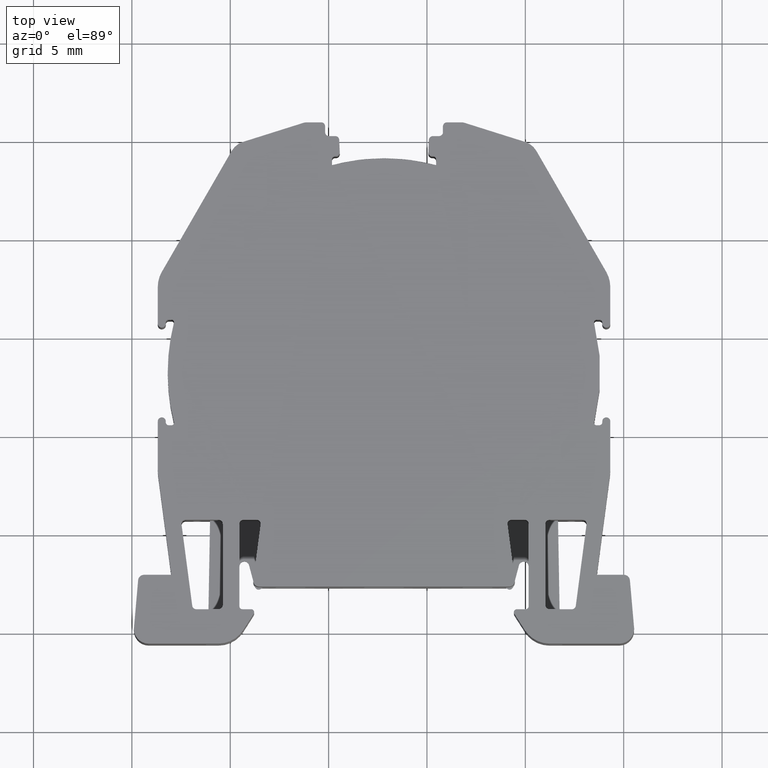
[diagram: clean part render]
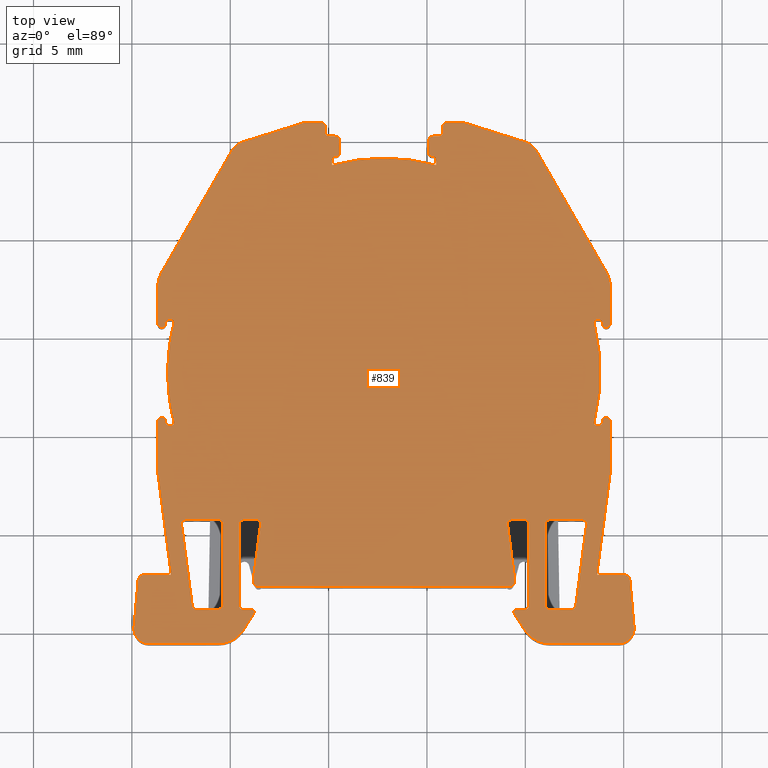
[diagram: same view with one face highlighted and labeled with its STEP entity id]
A machine part, top view. The second image highlights one B-rep face of the part: STEP entity #839.
In plain terms, the highlighted planar face has unit normal (-0, 0, 1).
Its self-contained STEP definition (entity closure, byte-faithful):
#5 = VECTOR ( 'NONE', #2752, 1000.000000000000114 ) ;
#17 = CIRCLE ( 'NONE', #4935, 0.1999999999999779732 ) ;
#24 = CARTESIAN_POINT ( 'NONE',  ( 1193.493241913000247, 595.7592131096030243, 5.799999999999999822 ) ) ;
#25 = EDGE_CURVE ( 'NONE', #971, #4863, #3251, .T. ) ;
#26 = DIRECTION ( 'NONE',  ( 0.5372996083468078998, -0.8433914458128958236, 0.000000000000000000 ) ) ;
#29 = CARTESIAN_POINT ( 'NONE',  ( 1173.095629021258901, 585.7088811504023624, 5.799999999999999822 ) ) ;
#30 = DIRECTION ( 'NONE',  ( 1.000000000000000000, 0.000000000000000000, 0.000000000000000000 ) ) ;
#31 = VERTEX_POINT ( 'NONE', #4700 ) ;
#39 = ORIENTED_EDGE ( 'NONE', *, *, #405, .T. ) ;
#42 = DIRECTION ( 'NONE',  ( -0.9537169507482070596, -0.3007057995043360132, 0.000000000000000000 ) ) ;
#46 = VERTEX_POINT ( 'NONE', #4075 ) ;
#76 = DIRECTION ( 'NONE',  ( 0.000000000000000000, 0.000000000000000000, 1.000000000000000000 ) ) ;
#88 = ORIENTED_EDGE ( 'NONE', *, *, #4102, .T. ) ;
#94 = DIRECTION ( 'NONE',  ( 0.000000000000000000, 0.000000000000000000, -1.000000000000000000 ) ) ;
#99 = LINE ( 'NONE', #2171, #5209 ) ;
#109 = AXIS2_PLACEMENT_3D ( 'NONE', #2958, #4186, #3528 ) ;
#118 = EDGE_CURVE ( 'NONE', #3494, #6640, #4870, .T. ) ;
#133 = VECTOR ( 'NONE', #4275, 1000.000000000000000 ) ;
#135 = ORIENTED_EDGE ( 'NONE', *, *, #176, .T. ) ;
#140 = DIRECTION ( 'NONE',  ( 0.000000000000000000, 0.000000000000000000, 1.000000000000000000 ) ) ;
#142 = VECTOR ( 'NONE', #3732, 999.9999999999998863 ) ;
#146 = VERTEX_POINT ( 'NONE', #3451 ) ;
#151 = DIRECTION ( 'NONE',  ( 0.000000000000000000, 0.000000000000000000, 1.000000000000000000 ) ) ;
#155 = VECTOR ( 'NONE', #3011, 1000.000000000000000 ) ;
#168 = ORIENTED_EDGE ( 'NONE', *, *, #246, .F. ) ;
#176 = EDGE_CURVE ( 'NONE', #2995, #4835, #8679, .T. ) ;
#227 = VERTEX_POINT ( 'NONE', #2144 ) ;
#238 = VERTEX_POINT ( 'NONE', #4248 ) ;
#246 = EDGE_CURVE ( 'NONE', #6957, #6559, #2882, .T. ) ;
#248 = VECTOR ( 'NONE', #487, 1000.000000000000114 ) ;
#250 = ORIENTED_EDGE ( 'NONE', *, *, #8658, .T. ) ;
#259 = CARTESIAN_POINT ( 'NONE',  ( 1172.017741744559771, 595.8842131095810828, 5.799999999999999822 ) ) ;
#266 = AXIS2_PLACEMENT_3D ( 'NONE', #3443, #4727, #2174 ) ;
#270 = CARTESIAN_POINT ( 'NONE',  ( 1175.668196645429816, 585.5088811504029991, 5.799999999999999822 ) ) ;
#273 = CIRCLE ( 'NONE', #981, 1.499999999999390710 ) ;
#285 = AXIS2_PLACEMENT_3D ( 'NONE', #7663, #4440, #5110 ) ;
#288 = VECTOR ( 'NONE', #26, 1000.000000000000114 ) ;
#289 = CARTESIAN_POINT ( 'NONE',  ( 1194.780464798667936, 580.1624862523149204, 5.799999999999999822 ) ) ;
#293 = DIRECTION ( 'NONE',  ( -1.000000000000000000, 6.316211876417010144E-12, 0.000000000000000000 ) ) ;
#294 = CARTESIAN_POINT ( 'NONE',  ( 1186.760905413668070, 605.4124862522929789, 5.799999999999999822 ) ) ;
#307 = VERTEX_POINT ( 'NONE', #1181 ) ;
#321 = EDGE_CURVE ( 'NONE', #3520, #7788, #7169, .T. ) ;
#329 = LINE ( 'NONE', #5658, #5021 ) ;
#344 = LINE ( 'NONE', #8501, #3631 ) ;
#405 = EDGE_CURVE ( 'NONE', #3649, #227, #6837, .T. ) ;
#432 = DIRECTION ( 'NONE',  ( 1.000000000000000000, 0.000000000000000000, 0.000000000000000000 ) ) ;
#446 = DIRECTION ( 'NONE',  ( -1.000000000000000000, 0.000000000000000000, 0.000000000000000000 ) ) ;
#462 = DIRECTION ( 'NONE',  ( 1.030821223298486400E-05, -0.9999999999468703882, 0.000000000000000000 ) ) ;
#470 = CARTESIAN_POINT ( 'NONE',  ( 1170.855520278099902, 580.1624862523079855, 5.799999999999999822 ) ) ;
#483 = ORIENTED_EDGE ( 'NONE', *, *, #2078, .T. ) ;
#487 = DIRECTION ( 'NONE',  ( -0.1305261922199726088, 0.9914448613738208183, 0.000000000000000000 ) ) ;
#488 = EDGE_CURVE ( 'NONE', #6468, #5509, #6141, .T. ) ;
#499 = VERTEX_POINT ( 'NONE', #2936 ) ;
#514 = CARTESIAN_POINT ( 'NONE',  ( 1185.312636888588031, 604.1887417396350202, 5.799999999999999822 ) ) ;
#515 = ORIENTED_EDGE ( 'NONE', *, *, #2048, .T. ) ;
#525 = EDGE_CURVE ( 'NONE', #8071, #5775, #5711, .T. ) ;
#539 = CIRCLE ( 'NONE', #5747, 0.2029996150678670119 ) ;
#543 = AXIS2_PLACEMENT_3D ( 'NONE', #1427, #545, #3225 ) ;
#545 = DIRECTION ( 'NONE',  ( 0.000000000000000000, 0.000000000000000000, 1.000000000000000000 ) ) ;
#547 = CARTESIAN_POINT ( 'NONE',  ( 1172.722702902631909, 585.7088811504020214, 5.799999999999999822 ) ) ;
#551 = VERTEX_POINT ( 'NONE', #7572 ) ;
#558 = DIRECTION ( 'NONE',  ( 1.096526407091067611E-07, -0.9999999999999941158, 0.000000000000000000 ) ) ;
#564 = DIRECTION ( 'NONE',  ( 0.9999999999355476676, -1.135362512712109459E-05, 0.000000000000000000 ) ) ;
#581 = CARTESIAN_POINT ( 'NONE',  ( 1190.561109536189861, 604.4630786933499849, 5.799999999999999822 ) ) ;
#610 = DIRECTION ( 'NONE',  ( 0.5372996083468078998, 0.8433914458128958236, 0.000000000000000000 ) ) ;
#616 = CARTESIAN_POINT ( 'NONE',  ( 1175.640195144863810, 604.9167956440809348, 5.799999999999999822 ) ) ;
#627 = ORIENTED_EDGE ( 'NONE', *, *, #5549, .T. ) ;
#640 = CARTESIAN_POINT ( 'NONE',  ( 1176.068196645429907, 581.1624862523088950, 5.799999999999999822 ) ) ;
#642 = LINE ( 'NONE', #2658, #6740 ) ;
#655 = AXIS2_PLACEMENT_3D ( 'NONE', #1577, #2841, #8133 ) ;
#657 = ORIENTED_EDGE ( 'NONE', *, *, #1307, .F. ) ;
#658 = CARTESIAN_POINT ( 'NONE',  ( 1175.640195144861764, 604.9167956440829812, 5.799999999999999822 ) ) ;
#672 = CARTESIAN_POINT ( 'NONE',  ( 1190.017788431340023, 581.3124862523138745, 5.799999999999999822 ) ) ;
#686 = VECTOR ( 'NONE', #6126, 1000.000000000000000 ) ;
#704 = CIRCLE ( 'NONE', #6478, 0.7500000000000284217 ) ;
#717 = VECTOR ( 'NONE', #8439, 1000.000000000000114 ) ;
#721 = DIRECTION ( 'NONE',  ( 1.000000000000000000, 0.000000000000000000, 0.000000000000000000 ) ) ;
#728 = CARTESIAN_POINT ( 'NONE',  ( 1180.340502722961901, 605.0137410015810246, 5.799999999999999822 ) ) ;
#736 = VERTEX_POINT ( 'NONE', #1272 ) ;
#745 = CARTESIAN_POINT ( 'NONE',  ( 1194.114992749200155, 595.6867413018139814, 5.799999999999999822 ) ) ;
#757 = AXIS2_PLACEMENT_3D ( 'NONE', #470, #3674, #4422 ) ;
#775 = DIRECTION ( 'NONE',  ( 1.000000000000000000, 0.000000000000000000, 0.000000000000000000 ) ) ;
#781 = AXIS2_PLACEMENT_3D ( 'NONE', #6203, #5584, #8193 ) ;
#784 = DIRECTION ( 'NONE',  ( 1.000000000000000000, 0.000000000000000000, 0.000000000000000000 ) ) ;
#801 = DIRECTION ( 'NONE',  ( 1.000000000000000000, 0.000000000000000000, 0.000000000000000000 ) ) ;
#804 = AXIS2_PLACEMENT_3D ( 'NONE', #4920, #960, #784 ) ;
#813 = AXIS2_PLACEMENT_3D ( 'NONE', #672, #5998, #721 ) ;
#815 = EDGE_CURVE ( 'NONE', #7068, #3934, #5972, .T. ) ;
#825 = CARTESIAN_POINT ( 'NONE',  ( 1193.493240208512134, 590.6400179940529824, 5.799999999999999822 ) ) ;
#839 = ADVANCED_FACE ( 'NONE', ( #7350, #1318, #3986 ), #6681, .T. ) ;
#841 = AXIS2_PLACEMENT_3D ( 'NONE', #7779, #4989, #1606 ) ;
#866 = VERTEX_POINT ( 'NONE', #2220 ) ;
#879 = VERTEX_POINT ( 'NONE', #6852 ) ;
#893 = CARTESIAN_POINT ( 'NONE',  ( 1186.911258313420149, 605.8893447276670940, 5.799999999999999822 ) ) ;
#895 = VECTOR ( 'NONE', #6901, 1000.000000000000000 ) ;
#909 = DIRECTION ( 'NONE',  ( 1.000000000000000000, 0.000000000000000000, 0.000000000000000000 ) ) ;
#922 = ORIENTED_EDGE ( 'NONE', *, *, #1867, .T. ) ;
#936 = EDGE_CURVE ( 'NONE', #6956, #3494, #5484, .T. ) ;
#955 = AXIS2_PLACEMENT_3D ( 'NONE', #4574, #4615, #1858 ) ;
#960 = DIRECTION ( 'NONE',  ( 0.000000000000000000, 0.000000000000000000, 1.000000000000000000 ) ) ;
#971 = VERTEX_POINT ( 'NONE', #1748 ) ;
#981 = AXIS2_PLACEMENT_3D ( 'NONE', #6979, #5037, #6316 ) ;
#987 = CARTESIAN_POINT ( 'NONE',  ( 1193.911993221189960, 595.6869293076999838, 5.799999999999999822 ) ) ;
#992 = EDGE_CURVE ( 'NONE', #6786, #3976, #6098, .T. ) ;
#995 = CARTESIAN_POINT ( 'NONE',  ( 1185.068368119555998, 604.3973877999669639, 5.799999999999999822 ) ) ;
#998 = VECTOR ( 'NONE', #3320, 1000.000000000000000 ) ;
#1004 = VECTOR ( 'NONE', #7613, 1000.000000000000000 ) ;
#1035 = DIRECTION ( 'NONE',  ( 1.000000000000000000, 0.000000000000000000, 0.000000000000000000 ) ) ;
#1047 = EDGE_CURVE ( 'NONE', #7751, #2559, #4242, .T. ) ;
#1048 = CARTESIAN_POINT ( 'NONE',  ( 1171.518954432719966, 598.3040426667839711, 5.799999999999999822 ) ) ;
#1055 = CARTESIAN_POINT ( 'NONE',  ( 1174.403809405311904, 579.4124862523078718, 5.799999999999999822 ) ) ;
#1064 = CIRCLE ( 'NONE', #5414, 0.1249999999999307221 ) ;
#1075 = EDGE_CURVE ( 'NONE', #5662, #8071, #7787, .T. ) ;
#1077 = DIRECTION ( 'NONE',  ( 1.000000000000000000, 0.000000000000000000, 0.000000000000000000 ) ) ;
#1083 = ORIENTED_EDGE ( 'NONE', *, *, #2675, .T. ) ;
#1093 = AXIS2_PLACEMENT_3D ( 'NONE', #2689, #4810, #8208 ) ;
#1113 = DIRECTION ( 'NONE',  ( 1.000000000000000000, 0.000000000000000000, 0.000000000000000000 ) ) ;
#1122 = AXIS2_PLACEMENT_3D ( 'NONE', #1124, #3803, #5833 ) ;
#1124 = CARTESIAN_POINT ( 'NONE',  ( 1172.017743163763953, 595.7592131095890409, 5.799999999999999822 ) ) ;
#1137 = AXIS2_PLACEMENT_3D ( 'NONE', #6159, #5589, #8103 ) ;
#1144 = AXIS2_PLACEMENT_3D ( 'NONE', #1184, #6512, #7344 ) ;
#1175 = VERTEX_POINT ( 'NONE', #6960 ) ;
#1181 = CARTESIAN_POINT ( 'NONE',  ( 1185.095672892510265, 605.0224690698180439, 5.799999999999999822 ) ) ;
#1184 = CARTESIAN_POINT ( 'NONE',  ( 1189.567788431339977, 581.0124862523139200, 5.799999999999999822 ) ) ;
#1186 = LINE ( 'NONE', #5968, #6760 ) ;
#1193 = VERTEX_POINT ( 'NONE', #2761 ) ;
#1208 = ORIENTED_EDGE ( 'NONE', *, *, #3407, .T. ) ;
#1250 = AXIS2_PLACEMENT_3D ( 'NONE', #6173, #6933, #6220 ) ;
#1260 = CARTESIAN_POINT ( 'NONE',  ( 1171.876159300361905, 590.6672694535619712, 5.799999999999999822 ) ) ;
#1272 = CARTESIAN_POINT ( 'NONE',  ( 1172.005464641307753, 582.9124862523059392, 5.799999999999999822 ) ) ;
#1273 = VERTEX_POINT ( 'NONE', #5171 ) ;
#1285 = VERTEX_POINT ( 'NONE', #1743 ) ;
#1288 = AXIS2_PLACEMENT_3D ( 'NONE', #3680, #2410, #909 ) ;
#1295 = VERTEX_POINT ( 'NONE', #8025 ) ;
#1307 = EDGE_CURVE ( 'NONE', #866, #1924, #8003, .T. ) ;
#1314 = EDGE_CURVE ( 'NONE', #2199, #3243, #6697, .T. ) ;
#1317 = CARTESIAN_POINT ( 'NONE',  ( 1193.497066441781953, 595.7285291532880365, 5.799999999999999822 ) ) ;
#1318 = FACE_BOUND ( 'NONE', #4135, .T. ) ;
#1321 = CARTESIAN_POINT ( 'NONE',  ( 1185.611874755365989, 605.4137410015829346, 5.799999999999999822 ) ) ;
#1370 = ORIENTED_EDGE ( 'NONE', *, *, #2641, .F. ) ;
#1376 = CARTESIAN_POINT ( 'NONE',  ( 1189.567788431339977, 581.1624862523138972, 5.799999999999999822 ) ) ;
#1386 = DIRECTION ( 'NONE',  ( 0.000000000000000000, 0.000000000000000000, -1.000000000000000000 ) ) ;
#1387 = CIRCLE ( 'NONE', #109, 0.1522499999999649134 ) ;
#1391 = CARTESIAN_POINT ( 'NONE',  ( 1189.967088502736033, 580.1065368397929660, 5.799999999999999822 ) ) ;
#1407 = VERTEX_POINT ( 'NONE', #2903 ) ;
#1420 = EDGE_CURVE ( 'NONE', #6678, #4213, #3602, .T. ) ;
#1425 = DIRECTION ( 'NONE',  ( 1.000000000000000000, 0.000000000000000000, 0.000000000000000000 ) ) ;
#1427 = CARTESIAN_POINT ( 'NONE',  ( 1185.268177580855991, 604.3886597317340375, 5.799999999999999822 ) ) ;
#1485 = CARTESIAN_POINT ( 'NONE',  ( 1172.817992538393810, 597.5540426667838574, 5.799999999999999822 ) ) ;
#1497 = CARTESIAN_POINT ( 'NONE',  ( 1176.170763187017883, 582.6516312353760441, 5.799999999999999822 ) ) ;
#1498 = EDGE_CURVE ( 'NONE', #5509, #3912, #4487, .T. ) ;
#1506 = EDGE_CURVE ( 'NONE', #7351, #146, #3079, .T. ) ;
#1509 = CARTESIAN_POINT ( 'NONE',  ( 1189.967788431340068, 585.5088811504029991, 5.799999999999999822 ) ) ;
#1524 = CIRCLE ( 'NONE', #6451, 0.1999999999999779732 ) ;
#1531 = CARTESIAN_POINT ( 'NONE',  ( 1185.811874755346025, 605.4137382202089839, 5.799999999999999822 ) ) ;
#1532 = AXIS2_PLACEMENT_3D ( 'NONE', #6567, #3913, #6609 ) ;
#1556 = LINE ( 'NONE', #893, #8704 ) ;
#1559 = CIRCLE ( 'NONE', #1144, 0.1500000000000945022 ) ;
#1565 = AXIS2_PLACEMENT_3D ( 'NONE', #7090, #4340, #3684 ) ;
#1577 = CARTESIAN_POINT ( 'NONE',  ( 1170.618148576843851, 582.6124862523059846, 5.799999999999999822 ) ) ;
#1592 = VERTEX_POINT ( 'NONE', #1680 ) ;
#1606 = DIRECTION ( 'NONE',  ( 1.000000000000000000, 0.000000000000000000, 0.000000000000000000 ) ) ;
#1618 = EDGE_CURVE ( 'NONE', #7400, #7582, #5731, .T. ) ;
#1621 = CARTESIAN_POINT ( 'NONE',  ( 1170.319290167416057, 582.6386329751319408, 5.799999999999999822 ) ) ;
#1636 = VERTEX_POINT ( 'NONE', #581 ) ;
#1644 = VERTEX_POINT ( 'NONE', #5904 ) ;
#1646 = EDGE_CURVE ( 'NONE', #2405, #3054, #3778, .T. ) ;
#1647 = DIRECTION ( 'NONE',  ( 0.000000000000000000, 0.000000000000000000, 1.000000000000000000 ) ) ;
#1652 = DIRECTION ( 'NONE',  ( 0.000000000000000000, 0.000000000000000000, 1.000000000000000000 ) ) ;
#1655 = CARTESIAN_POINT ( 'NONE',  ( 1185.811878910056066, 605.7124890336818908, 5.799999999999999822 ) ) ;
#1659 = DIRECTION ( 'NONE',  ( 0.000000000000000000, 0.000000000000000000, 1.000000000000000000 ) ) ;
#1674 = EDGE_CURVE ( 'NONE', #2617, #3513, #4193, .T. ) ;
#1679 = CARTESIAN_POINT ( 'NONE',  ( 1175.618196645430089, 581.3124862523088723, 5.799999999999999822 ) ) ;
#1680 = CARTESIAN_POINT ( 'NONE',  ( 1174.618196645439866, 581.3624862522789272, 5.799999999999999822 ) ) ;
#1683 = CIRCLE ( 'NONE', #4060, 10.30224969145598912 ) ;
#1685 = CIRCLE ( 'NONE', #6610, 3.000000000000113687 ) ;
#1686 = EDGE_CURVE ( 'NONE', #5799, #5688, #8607, .T. ) ;
#1688 = AXIS2_PLACEMENT_3D ( 'NONE', #6261, #140, #6129 ) ;
#1697 = ORIENTED_EDGE ( 'NONE', *, *, #5248, .T. ) ;
#1712 = LINE ( 'NONE', #5102, #8572 ) ;
#1721 = CARTESIAN_POINT ( 'NONE',  ( 1193.618241497039890, 590.5150179940599173, 5.799999999999999822 ) ) ;
#1731 = CARTESIAN_POINT ( 'NONE',  ( 1171.876158704625823, 595.7319615020910533, 5.799999999999999822 ) ) ;
#1737 = VERTEX_POINT ( 'NONE', #7364 ) ;
#1741 = EDGE_CURVE ( 'NONE', #7796, #8126, #3997, .T. ) ;
#1743 = CARTESIAN_POINT ( 'NONE',  ( 1171.723909561541859, 590.6675514623909748, 5.799999999999999822 ) ) ;
#1748 = CARTESIAN_POINT ( 'NONE',  ( 1180.340502722961901, 605.2137410015809564, 5.799999999999999822 ) ) ;
#1765 = LINE ( 'NONE', #4441, #7194 ) ;
#1769 = ORIENTED_EDGE ( 'NONE', *, *, #1075, .T. ) ;
#1771 = DIRECTION ( 'NONE',  ( 0.000000000000000000, 0.000000000000000000, -1.000000000000000000 ) ) ;
#1787 = CARTESIAN_POINT ( 'NONE',  ( 1194.317992538381986, 597.5540426667969314, 5.799999999999999822 ) ) ;
#1819 = AXIS2_PLACEMENT_3D ( 'NONE', #1731, #1771, #4406 ) ;
#1825 = DIRECTION ( 'NONE',  ( 0.000000000000000000, 0.000000000000000000, -1.000000000000000000 ) ) ;
#1827 = CIRCLE ( 'NONE', #2523, 0.2000000000002000178 ) ;
#1839 = CARTESIAN_POINT ( 'NONE',  ( 1180.173070346993882, 604.0387435431861149, 5.799999999999999822 ) ) ;
#1858 = DIRECTION ( 'NONE',  ( 1.000000000000000000, 0.000000000000000000, 0.000000000000000000 ) ) ;
#1862 = AXIS2_PLACEMENT_3D ( 'NONE', #6795, #7543, #1425 ) ;
#1867 = EDGE_CURVE ( 'NONE', #1285, #4934, #2154, .T. ) ;
#1872 = ORIENTED_EDGE ( 'NONE', *, *, #4437, .T. ) ;
#1886 = LINE ( 'NONE', #514, #2808 ) ;
#1887 = ORIENTED_EDGE ( 'NONE', *, *, #25, .T. ) ;
#1892 = ORIENTED_EDGE ( 'NONE', *, *, #936, .T. ) ;
#1905 = CARTESIAN_POINT ( 'NONE',  ( 1171.723909300362038, 590.6672694535619712, 5.799999999999999822 ) ) ;
#1909 = ORIENTED_EDGE ( 'NONE', *, *, #118, .T. ) ;
#1918 = CARTESIAN_POINT ( 'NONE',  ( 1170.855520278099902, 580.1624862523079855, 5.799999999999999822 ) ) ;
#1922 = CARTESIAN_POINT ( 'NONE',  ( 1175.668196645429816, 585.7088811504029309, 5.799999999999999822 ) ) ;
#1924 = VERTEX_POINT ( 'NONE', #3776 ) ;
#1935 = CIRCLE ( 'NONE', #6850, 0.1500000000000945022 ) ;
#1937 = VERTEX_POINT ( 'NONE', #4297 ) ;
#1952 = AXIS2_PLACEMENT_3D ( 'NONE', #7992, #1954, #4634 ) ;
#1954 = DIRECTION ( 'NONE',  ( 0.000000000000000000, 0.000000000000000000, -1.000000000000000000 ) ) ;
#1956 = DIRECTION ( 'NONE',  ( 1.000000000000000000, 0.000000000000000000, 0.000000000000000000 ) ) ;
#2002 = DIRECTION ( 'NONE',  ( 0.000000000000000000, 0.000000000000000000, 1.000000000000000000 ) ) ;
#2004 = AXIS2_PLACEMENT_3D ( 'NONE', #7080, #5798, #4327 ) ;
#2010 = DIRECTION ( 'NONE',  ( -1.000000000000000000, 0.000000000000000000, 0.000000000000000000 ) ) ;
#2011 = CARTESIAN_POINT ( 'NONE',  ( 1180.173070346993882, 604.0387435431861149, 5.799999999999999822 ) ) ;
#2016 = CARTESIAN_POINT ( 'NONE',  ( 1171.876157730938075, 590.5150194535699484, 5.799999999999999822 ) ) ;
#2047 = LINE ( 'NONE', #1391, #288 ) ;
#2048 = EDGE_CURVE ( 'NONE', #7667, #7068, #1064, .T. ) ;
#2051 = ORIENTED_EDGE ( 'NONE', *, *, #2340, .T. ) ;
#2078 = EDGE_CURVE ( 'NONE', #8532, #1193, #6018, .T. ) ;
#2084 = DIRECTION ( 'NONE',  ( 1.000000000000000000, 0.000000000000000000, 0.000000000000000000 ) ) ;
#2092 = VERTEX_POINT ( 'NONE', #7356 ) ;
#2101 = CARTESIAN_POINT ( 'NONE',  ( 1193.911992451326114, 590.7126776603699909, 5.799999999999999822 ) ) ;
#2102 = AXIS2_PLACEMENT_3D ( 'NONE', #1509, #5520, #6669 ) ;
#2120 = CIRCLE ( 'NONE', #1288, 0.2000000000002000178 ) ;
#2129 = VECTOR ( 'NONE', #564, 999.9999999999998863 ) ;
#2132 = CARTESIAN_POINT ( 'NONE',  ( 1174.317992538359931, 588.3309814364290560, 5.799999999999999822 ) ) ;
#2144 = CARTESIAN_POINT ( 'NONE',  ( 1186.760905413668070, 605.9124862522929789, 5.799999999999999822 ) ) ;
#2148 = CARTESIAN_POINT ( 'NONE',  ( 1194.317992538407907, 588.3309811074560685, 5.799999999999999822 ) ) ;
#2154 = LINE ( 'NONE', #4218, #2538 ) ;
#2156 = CARTESIAN_POINT ( 'NONE',  ( 1171.518954432719966, 598.3040426667839711, 5.799999999999999822 ) ) ;
#2162 = ORIENTED_EDGE ( 'NONE', *, *, #6127, .T. ) ;
#2171 = CARTESIAN_POINT ( 'NONE',  ( 1170.108374254532009, 580.2278530593679307, 5.799999999999999822 ) ) ;
#2172 = CARTESIAN_POINT ( 'NONE',  ( 1194.317992799565900, 590.7126776603699909, 5.799999999999999822 ) ) ;
#2174 = DIRECTION ( 'NONE',  ( 1.000000000000000000, 0.000000000000000000, 0.000000000000000000 ) ) ;
#2184 = DIRECTION ( 'NONE',  ( 1.000000000000000000, 0.000000000000000000, 0.000000000000000000 ) ) ;
#2194 = CARTESIAN_POINT ( 'NONE',  ( 1189.092494622045933, 585.4827759119580151, 5.799999999999999822 ) ) ;
#2197 = VERTEX_POINT ( 'NONE', #4612 ) ;
#2199 = VERTEX_POINT ( 'NONE', #7311 ) ;
#2220 = CARTESIAN_POINT ( 'NONE',  ( 1193.111571143565925, 585.4827758902250707, 5.799999999999999822 ) ) ;
#2225 = EDGE_CURVE ( 'NONE', #4213, #1592, #2322, .T. ) ;
#2240 = CARTESIAN_POINT ( 'NONE',  ( 1178.724726763352010, 605.8893447276510642, 5.799999999999999822 ) ) ;
#2252 = CARTESIAN_POINT ( 'NONE',  ( 1189.967788431340068, 585.7088811504023624, 5.799999999999999822 ) ) ;
#2256 = AXIS2_PLACEMENT_3D ( 'NONE', #2278, #1659, #7837 ) ;
#2257 = CIRCLE ( 'NONE', #5921, 0.1500000000003165468 ) ;
#2278 = CARTESIAN_POINT ( 'NONE',  ( 1185.268177580855991, 604.3886597317340375, 5.799999999999999822 ) ) ;
#2306 = DIRECTION ( 'NONE',  ( 1.000000000000000000, 0.000000000000000000, 0.000000000000000000 ) ) ;
#2314 = CARTESIAN_POINT ( 'NONE',  ( 1175.668896574031805, 580.1065368397879638, 5.799999999999999822 ) ) ;
#2322 = CIRCLE ( 'NONE', #4003, 0.1999999999999779732 ) ;
#2324 = CARTESIAN_POINT ( 'NONE',  ( 1189.090783594321920, 585.5088811504019759, 5.799999999999999822 ) ) ;
#2339 = DIRECTION ( 'NONE',  ( 0.000000000000000000, 0.000000000000000000, -1.000000000000000000 ) ) ;
#2340 = EDGE_CURVE ( 'NONE', #6743, #6311, #5575, .T. ) ;
#2342 = CARTESIAN_POINT ( 'NONE',  ( 1185.295482353807984, 605.0137410015850037, 5.799999999999999822 ) ) ;
#2345 = ORIENTED_EDGE ( 'NONE', *, *, #1618, .T. ) ;
#2354 = ORIENTED_EDGE ( 'NONE', *, *, #1047, .T. ) ;
#2360 = LINE ( 'NONE', #4251, #2651 ) ;
#2370 = CIRCLE ( 'NONE', #1688, 0.1500000000000945022 ) ;
#2376 = VECTOR ( 'NONE', #4601, 1000.000000000000000 ) ;
#2382 = ORIENTED_EDGE ( 'NONE', *, *, #2721, .T. ) ;
#2389 = AXIS2_PLACEMENT_3D ( 'NONE', #270, #94, #8211 ) ;
#2405 = VERTEX_POINT ( 'NONE', #7124 ) ;
#2410 = DIRECTION ( 'NONE',  ( 0.000000000000000000, 0.000000000000000000, 1.000000000000000000 ) ) ;
#2422 = AXIS2_PLACEMENT_3D ( 'NONE', #2823, #5518, #6042 ) ;
#2453 = CARTESIAN_POINT ( 'NONE',  ( 1178.875079663104088, 605.4124862522769490, 5.799999999999999822 ) ) ;
#2500 = VERTEX_POINT ( 'NONE', #640 ) ;
#2513 = CIRCLE ( 'NONE', #3616, 0.1500000000003165468 ) ;
#2516 = VERTEX_POINT ( 'NONE', #1839 ) ;
#2523 = AXIS2_PLACEMENT_3D ( 'NONE', #7869, #4511, #6797 ) ;
#2538 = VECTOR ( 'NONE', #6249, 1000.000000000000114 ) ;
#2539 = EDGE_CURVE ( 'NONE', #3826, #2892, #8539, .T. ) ;
#2546 = LINE ( 'NONE', #6597, #8613 ) ;
#2556 = VERTEX_POINT ( 'NONE', #5842 ) ;
#2559 = VERTEX_POINT ( 'NONE', #2656 ) ;
#2561 = CARTESIAN_POINT ( 'NONE',  ( 1195.316694909343823, 582.6386329751389894, 5.799999999999999822 ) ) ;
#2564 = EDGE_CURVE ( 'NONE', #1592, #4096, #3891, .T. ) ;
#2576 = ORIENTED_EDGE ( 'NONE', *, *, #8513, .T. ) ;
#2583 = LINE ( 'NONE', #7967, #5501 ) ;
#2585 = ORIENTED_EDGE ( 'NONE', *, *, #4252, .T. ) ;
#2595 = CARTESIAN_POINT ( 'NONE',  ( 1176.468196645429998, 582.6124733777099891, 5.799999999999999822 ) ) ;
#2617 = VERTEX_POINT ( 'NONE', #2172 ) ;
#2624 = DIRECTION ( 'NONE',  ( 0.000000000000000000, 0.000000000000000000, -1.000000000000000000 ) ) ;
#2628 = AXIS2_PLACEMENT_3D ( 'NONE', #5914, #1825, #4589 ) ;
#2641 = EDGE_CURVE ( 'NONE', #4188, #1273, #8319, .T. ) ;
#2646 = VECTOR ( 'NONE', #5744, 1000.000000000000000 ) ;
#2647 = DIRECTION ( 'NONE',  ( 0.1305263008888089826, 0.9914448470672909686, 0.000000000000000000 ) ) ;
#2651 = VECTOR ( 'NONE', #6951, 1000.000000000000000 ) ;
#2656 = CARTESIAN_POINT ( 'NONE',  ( 1195.017836499924215, 582.9124862522929789, 5.799999999999999822 ) ) ;
#2658 = CARTESIAN_POINT ( 'NONE',  ( 1171.317992538360159, 588.3309811074690288, 5.799999999999999822 ) ) ;
#2665 = DIRECTION ( 'NONE',  ( -0.000000000000000000, 0.000000000000000000, 1.000000000000000000 ) ) ;
#2675 = EDGE_CURVE ( 'NONE', #2516, #5799, #2257, .T. ) ;
#2679 = VERTEX_POINT ( 'NONE', #3441 ) ;
#2689 = CARTESIAN_POINT ( 'NONE',  ( 1189.695084132404190, 603.9630786933500985, 5.799999999999999822 ) ) ;
#2704 = ORIENTED_EDGE ( 'NONE', *, *, #5013, .T. ) ;
#2717 = ORIENTED_EDGE ( 'NONE', *, *, #5965, .T. ) ;
#2721 = EDGE_CURVE ( 'NONE', #46, #971, #6489, .T. ) ;
#2731 = LINE ( 'NONE', #4183, #7916 ) ;
#2752 = DIRECTION ( 'NONE',  ( -0.5000000000000129896, 0.8660254037844311581, 0.000000000000000000 ) ) ;
#2761 = CARTESIAN_POINT ( 'NONE',  ( 1171.317992799569993, 595.6865532959149050, 5.799999999999999822 ) ) ;
#2763 = AXIS2_PLACEMENT_3D ( 'NONE', #294, #5755, #5047 ) ;
#2767 = VECTOR ( 'NONE', #462, 1000.000000000000114 ) ;
#2783 = AXIS2_PLACEMENT_3D ( 'NONE', #2595, #3341, #7275 ) ;
#2784 = CARTESIAN_POINT ( 'NONE',  ( 1191.217788431346207, 585.5088811504029991, 5.799999999999999822 ) ) ;
#2786 = EDGE_CURVE ( 'NONE', #3976, #5337, #4276, .T. ) ;
#2798 = EDGE_CURVE ( 'NONE', #551, #499, #6448, .T. ) ;
#2800 = VECTOR ( 'NONE', #6361, 1000.000000000000000 ) ;
#2808 = VECTOR ( 'NONE', #8050, 1000.000000000000227 ) ;
#2823 = CARTESIAN_POINT ( 'NONE',  ( 1191.317992538408134, 588.3309814364160957, 5.799999999999999822 ) ) ;
#2841 = DIRECTION ( 'NONE',  ( 0.000000000000000000, 0.000000000000000000, 1.000000000000000000 ) ) ;
#2863 = DIRECTION ( 'NONE',  ( 0.000000000000000000, 0.000000000000000000, -1.000000000000000000 ) ) ;
#2865 = DIRECTION ( 'NONE',  ( 0.1305263008887283527, 0.9914448470673016267, 0.000000000000000000 ) ) ;
#2882 = LINE ( 'NONE', #4205, #6842 ) ;
#2892 = VERTEX_POINT ( 'NONE', #8656 ) ;
#2896 = ORIENTED_EDGE ( 'NONE', *, *, #4937, .T. ) ;
#2902 = DIRECTION ( 'NONE',  ( 0.000000000000000000, 0.000000000000000000, -1.000000000000000000 ) ) ;
#2903 = CARTESIAN_POINT ( 'NONE',  ( 1171.343657997159880, 587.9394025337610401, 5.799999999999999822 ) ) ;
#2935 = DIRECTION ( 'NONE',  ( 1.000000000000000000, 0.000000000000000000, 0.000000000000000000 ) ) ;
#2936 = CARTESIAN_POINT ( 'NONE',  ( 1193.911993221189960, 595.6869293076999838, 5.799999999999999822 ) ) ;
#2950 = ORIENTED_EDGE ( 'NONE', *, *, #992, .T. ) ;
#2957 = VECTOR ( 'NONE', #42, 1000.000000000000227 ) ;
#2958 = CARTESIAN_POINT ( 'NONE',  ( 1171.876159300361905, 590.6672694535619712, 5.799999999999999822 ) ) ;
#2970 = CARTESIAN_POINT ( 'NONE',  ( 1170.855520278099902, 579.4124862523078718, 5.799999999999999822 ) ) ;
#2971 = VERTEX_POINT ( 'NONE', #7156 ) ;
#2995 = VERTEX_POINT ( 'NONE', #7954 ) ;
#2996 = CARTESIAN_POINT ( 'NONE',  ( 1185.611874755365989, 605.2137410015830028, 5.799999999999999822 ) ) ;
#2997 = DIRECTION ( 'NONE',  ( 0.000000000000000000, 1.000000000000000000, 0.000000000000000000 ) ) ;
#3001 = VERTEX_POINT ( 'NONE', #8161 ) ;
#3008 = CARTESIAN_POINT ( 'NONE',  ( 1180.540312184263939, 605.0224690698061067, 5.799999999999999822 ) ) ;
#3011 = DIRECTION ( 'NONE',  ( -0.04364034116409397368, -0.9990473064990874619, 0.000000000000000000 ) ) ;
#3020 = VECTOR ( 'NONE', #4572, 1000.000000000000000 ) ;
#3029 = DIRECTION ( 'NONE',  ( 0.000000000000000000, 0.000000000000000000, 1.000000000000000000 ) ) ;
#3036 = VERTEX_POINT ( 'NONE', #6885 ) ;
#3042 = EDGE_CURVE ( 'NONE', #2197, #866, #2731, .T. ) ;
#3054 = VERTEX_POINT ( 'NONE', #3353 ) ;
#3065 = CIRCLE ( 'NONE', #813, 0.1499999999998724576 ) ;
#3066 = DIRECTION ( 'NONE',  ( -0.08715574274777940222, 0.9961946980917349981, 0.000000000000000000 ) ) ;
#3074 = ORIENTED_EDGE ( 'NONE', *, *, #3042, .F. ) ;
#3076 = EDGE_CURVE ( 'NONE', #4548, #3550, #6211, .T. ) ;
#3079 = CIRCLE ( 'NONE', #1819, 0.1522499999997428688 ) ;
#3089 = EDGE_CURVE ( 'NONE', #1193, #3536, #6356, .T. ) ;
#3096 = VECTOR ( 'NONE', #7628, 1000.000000000000114 ) ;
#3101 = VECTOR ( 'NONE', #3066, 1000.000000000000000 ) ;
#3105 = AXIS2_PLACEMENT_3D ( 'NONE', #728, #1647, #1077 ) ;
#3112 = AXIS2_PLACEMENT_3D ( 'NONE', #7440, #3544, #4208 ) ;
#3138 = ORIENTED_EDGE ( 'NONE', *, *, #6408, .T. ) ;
#3157 = CARTESIAN_POINT ( 'NONE',  ( 1182.125958322714268, 593.1996189174709571, 5.799999999999999822 ) ) ;
#3158 = EDGE_CURVE ( 'NONE', #238, #4548, #4345, .T. ) ;
#3159 = VERTEX_POINT ( 'NONE', #8248 ) ;
#3168 = VERTEX_POINT ( 'NONE', #1376 ) ;
#3178 = LINE ( 'NONE', #3223, #2767 ) ;
#3195 = CIRCLE ( 'NONE', #5871, 0.1999999999999779732 ) ;
#3198 = CARTESIAN_POINT ( 'NONE',  ( 1193.759827941576077, 595.8842115020960364, 5.799999999999999822 ) ) ;
#3209 = AXIS2_PLACEMENT_3D ( 'NONE', #745, #76, #2935 ) ;
#3223 = CARTESIAN_POINT ( 'NONE',  ( 1185.462919574408033, 603.5687671853158918, 5.799999999999999822 ) ) ;
#3225 = DIRECTION ( 'NONE',  ( 1.000000000000000000, 0.000000000000000000, 0.000000000000000000 ) ) ;
#3243 = VERTEX_POINT ( 'NONE', #4761 ) ;
#3248 = LINE ( 'NONE', #29, #5784 ) ;
#3251 = LINE ( 'NONE', #4658, #3881 ) ;
#3258 = ORIENTED_EDGE ( 'NONE', *, *, #7245, .T. ) ;
#3288 = ORIENTED_EDGE ( 'NONE', *, *, #6132, .T. ) ;
#3305 = CARTESIAN_POINT ( 'NONE',  ( 1194.114992749200155, 595.6867413018139814, 5.799999999999999822 ) ) ;
#3320 = DIRECTION ( 'NONE',  ( -1.000000000000000000, 0.000000000000000000, 0.000000000000000000 ) ) ;
#3341 = DIRECTION ( 'NONE',  ( 0.000000000000000000, 0.000000000000000000, 1.000000000000000000 ) ) ;
#3343 = CIRCLE ( 'NONE', #955, 0.1500000000000945022 ) ;
#3350 = EDGE_CURVE ( 'NONE', #4747, #2500, #3343, .T. ) ;
#3353 = CARTESIAN_POINT ( 'NONE',  ( 1176.168196645430044, 582.6124733777099891, 5.799999999999999822 ) ) ;
#3397 = CARTESIAN_POINT ( 'NONE',  ( 1191.217788431346207, 585.7088811504029309, 5.799999999999999822 ) ) ;
#3405 = CARTESIAN_POINT ( 'NONE',  ( 1171.876158704625823, 595.7319615020910533, 5.799999999999999822 ) ) ;
#3407 = EDGE_CURVE ( 'NONE', #1295, #7800, #6524, .T. ) ;
#3426 = VERTEX_POINT ( 'NONE', #6562 ) ;
#3441 = CARTESIAN_POINT ( 'NONE',  ( 1172.017741744559771, 595.8842131095810828, 5.799999999999999822 ) ) ;
#3443 = CARTESIAN_POINT ( 'NONE',  ( 1189.167788431338067, 582.6124733777099891, 5.799999999999999822 ) ) ;
#3451 = CARTESIAN_POINT ( 'NONE',  ( 1171.876157135188123, 595.8842115020820529, 5.799999999999999822 ) ) ;
#3453 = AXIS2_PLACEMENT_3D ( 'NONE', #1321, #2624, #5317 ) ;
#3469 = ORIENTED_EDGE ( 'NONE', *, *, #8174, .T. ) ;
#3470 = VERTEX_POINT ( 'NONE', #825 ) ;
#3485 = CARTESIAN_POINT ( 'NONE',  ( 1180.323070346986015, 604.0387419969539451, 5.799999999999999822 ) ) ;
#3494 = VERTEX_POINT ( 'NONE', #1531 ) ;
#3504 = VERTEX_POINT ( 'NONE', #4872 ) ;
#3513 = VERTEX_POINT ( 'NONE', #2101 ) ;
#3518 = VERTEX_POINT ( 'NONE', #4032 ) ;
#3520 = VERTEX_POINT ( 'NONE', #6240 ) ;
#3526 = CARTESIAN_POINT ( 'NONE',  ( 1191.217788431346207, 581.1624862522789954, 5.799999999999999822 ) ) ;
#3528 = DIRECTION ( 'NONE',  ( 1.000000000000000000, 0.000000000000000000, 0.000000000000000000 ) ) ;
#3536 = VERTEX_POINT ( 'NONE', #8097 ) ;
#3544 = DIRECTION ( 'NONE',  ( 0.000000000000000000, 0.000000000000000000, 1.000000000000000000 ) ) ;
#3550 = VERTEX_POINT ( 'NONE', #2148 ) ;
#3559 = ORIENTED_EDGE ( 'NONE', *, *, #1314, .F. ) ;
#3566 = CARTESIAN_POINT ( 'NONE',  ( 1171.723908704625956, 595.7319615020910533, 5.799999999999999822 ) ) ;
#3567 = DIRECTION ( 'NONE',  ( -0.9537169507482131658, 0.3007057995043164733, 0.000000000000000000 ) ) ;
#3602 = LINE ( 'NONE', #7010, #686 ) ;
#3603 = CARTESIAN_POINT ( 'NONE',  ( 1171.823708631258114, 593.1996189174709571, 5.799999999999999822 ) ) ;
#3604 = DIRECTION ( 'NONE',  ( 0.000000000000000000, 0.000000000000000000, -1.000000000000000000 ) ) ;
#3606 = ORIENTED_EDGE ( 'NONE', *, *, #4544, .T. ) ;
#3609 = ORIENTED_EDGE ( 'NONE', *, *, #3817, .T. ) ;
#3615 = LINE ( 'NONE', #3670, #5336 ) ;
#3616 = AXIS2_PLACEMENT_3D ( 'NONE', #4499, #7147, #1113 ) ;
#3631 = VECTOR ( 'NONE', #8404, 1000.000000000000000 ) ;
#3644 = EDGE_CURVE ( 'NONE', #227, #2556, #344, .T. ) ;
#3649 = VERTEX_POINT ( 'NONE', #4388 ) ;
#3651 = CARTESIAN_POINT ( 'NONE',  ( 1175.468196645429998, 585.5088811504029991, 5.799999999999999822 ) ) ;
#3656 = CARTESIAN_POINT ( 'NONE',  ( 1193.618240208512134, 590.6400179940529824, 5.799999999999999822 ) ) ;
#3670 = CARTESIAN_POINT ( 'NONE',  ( 1193.912075515226206, 590.6675514623780145, 5.799999999999999822 ) ) ;
#3674 = DIRECTION ( 'NONE',  ( 0.000000000000000000, 0.000000000000000000, 1.000000000000000000 ) ) ;
#3679 = EDGE_CURVE ( 'NONE', #736, #2995, #2360, .T. ) ;
#3680 = CARTESIAN_POINT ( 'NONE',  ( 1179.624106166731963, 605.7124862522770172, 5.799999999999999822 ) ) ;
#3683 = VERTEX_POINT ( 'NONE', #7087 ) ;
#3684 = DIRECTION ( 'NONE',  ( -1.000000000000000000, 0.000000000000000000, 0.000000000000000000 ) ) ;
#3706 = LINE ( 'NONE', #3748, #133 ) ;
#3708 = DIRECTION ( 'NONE',  ( 1.000000000000000000, 0.000000000000000000, 0.000000000000000000 ) ) ;
#3720 = CARTESIAN_POINT ( 'NONE',  ( 1194.780464798667936, 579.4124862523149204, 5.799999999999999822 ) ) ;
#3725 = ORIENTED_EDGE ( 'NONE', *, *, #6059, .T. ) ;
#3732 = DIRECTION ( 'NONE',  ( 0.9999999999355476676, 1.135362512712109459E-05, 0.000000000000000000 ) ) ;
#3736 = ORIENTED_EDGE ( 'NONE', *, *, #6175, .T. ) ;
#3748 = CARTESIAN_POINT ( 'NONE',  ( 1175.618196645430089, 581.1624862523088950, 5.799999999999999822 ) ) ;
#3776 = CARTESIAN_POINT ( 'NONE',  ( 1192.913282174151846, 585.7088811504020214, 5.799999999999999822 ) ) ;
#3778 = CIRCLE ( 'NONE', #2783, 0.2999999999999669598 ) ;
#3801 = EDGE_CURVE ( 'NONE', #3036, #3897, #642, .T. ) ;
#3802 = CARTESIAN_POINT ( 'NONE',  ( 1192.913282174151846, 585.5088811504019759, 5.799999999999999822 ) ) ;
#3803 = DIRECTION ( 'NONE',  ( 0.000000000000000000, 0.000000000000000000, -1.000000000000000000 ) ) ;
#3808 = CIRCLE ( 'NONE', #6766, 0.1522500000001869580 ) ;
#3817 = EDGE_CURVE ( 'NONE', #5173, #3841, #5845, .T. ) ;
#3826 = VERTEX_POINT ( 'NONE', #1922 ) ;
#3829 = LINE ( 'NONE', #259, #142 ) ;
#3841 = VERTEX_POINT ( 'NONE', #4526 ) ;
#3845 = LINE ( 'NONE', #7248, #4200 ) ;
#3847 = EDGE_CURVE ( 'NONE', #6311, #1295, #4056, .T. ) ;
#3855 = CARTESIAN_POINT ( 'NONE',  ( 1179.824106166714046, 605.7124890336668841, 5.799999999999999822 ) ) ;
#3859 = ORIENTED_EDGE ( 'NONE', *, *, #5773, .T. ) ;
#3860 = DIRECTION ( 'NONE',  ( 0.1305263008887283527, -0.9914448470673016267, 0.000000000000000000 ) ) ;
#3871 = ORIENTED_EDGE ( 'NONE', *, *, #321, .T. ) ;
#3881 = VECTOR ( 'NONE', #4571, 1000.000000000000000 ) ;
#3884 = EDGE_CURVE ( 'NONE', #5766, #2516, #6097, .T. ) ;
#3891 = LINE ( 'NONE', #4561, #4660 ) ;
#3897 = VERTEX_POINT ( 'NONE', #4822 ) ;
#3912 = VERTEX_POINT ( 'NONE', #24 ) ;
#3913 = DIRECTION ( 'NONE',  ( 0.000000000000000000, 0.000000000000000000, 1.000000000000000000 ) ) ;
#3934 = VERTEX_POINT ( 'NONE', #7384 ) ;
#3938 = CARTESIAN_POINT ( 'NONE',  ( 1171.317992538394037, 597.5540426667838574, 5.799999999999999822 ) ) ;
#3965 = ORIENTED_EDGE ( 'NONE', *, *, #7820, .T. ) ;
#3976 = VERTEX_POINT ( 'NONE', #2970 ) ;
#3986 = FACE_OUTER_BOUND ( 'NONE', #6114, .T. ) ;
#3988 = DIRECTION ( 'NONE',  ( 1.000000000000000000, 0.000000000000000000, 0.000000000000000000 ) ) ;
#3997 = LINE ( 'NONE', #658, #2957 ) ;
#4003 = AXIS2_PLACEMENT_3D ( 'NONE', #4158, #6192, #4117 ) ;
#4020 = DIRECTION ( 'NONE',  ( -1.000000000000000000, 0.000000000000000000, 0.000000000000000000 ) ) ;
#4024 = DIRECTION ( 'NONE',  ( -0.9999999999468703882, 1.030821215603922217E-05, 0.000000000000000000 ) ) ;
#4029 = EDGE_CURVE ( 'NONE', #3513, #7191, #3615, .T. ) ;
#4032 = CARTESIAN_POINT ( 'NONE',  ( 1190.167788431339886, 581.3124862523138745, 5.799999999999999822 ) ) ;
#4038 = EDGE_CURVE ( 'NONE', #4610, #7369, #1683, .T. ) ;
#4053 = DIRECTION ( 'NONE',  ( 1.000000000000000000, 0.000000000000000000, 0.000000000000000000 ) ) ;
#4056 = CIRCLE ( 'NONE', #266, 0.2999999999999669598 ) ;
#4060 = AXIS2_PLACEMENT_3D ( 'NONE', #8258, #4279, #7076 ) ;
#4062 = DIRECTION ( 'NONE',  ( 1.000000000000000000, 0.000000000000000000, 0.000000000000000000 ) ) ;
#4064 = CIRCLE ( 'NONE', #2389, 0.1999999999999779732 ) ;
#4067 = VECTOR ( 'NONE', #6093, 1000.000000000000000 ) ;
#4074 = EDGE_CURVE ( 'NONE', #1644, #7140, #273, .T. ) ;
#4075 = CARTESIAN_POINT ( 'NONE',  ( 1180.540312184263939, 605.0224690698061067, 5.799999999999999822 ) ) ;
#4084 = CARTESIAN_POINT ( 'NONE',  ( 1191.232175671455934, 579.4124862523149204, 5.799999999999999822 ) ) ;
#4086 = CIRCLE ( 'NONE', #1565, 0.1999999999999779732 ) ;
#4096 = VERTEX_POINT ( 'NONE', #8305 ) ;
#4102 = EDGE_CURVE ( 'NONE', #5947, #46, #7024, .T. ) ;
#4103 = VERTEX_POINT ( 'NONE', #6501 ) ;
#4109 = EDGE_CURVE ( 'NONE', #3054, #6743, #7594, .T. ) ;
#4111 = ORIENTED_EDGE ( 'NONE', *, *, #6267, .T. ) ;
#4115 = CARTESIAN_POINT ( 'NONE',  ( 1189.441279714465963, 580.9318913110619178, 5.799999999999999822 ) ) ;
#4117 = DIRECTION ( 'NONE',  ( 1.000000000000000000, 0.000000000000000000, 0.000000000000000000 ) ) ;
#4135 = EDGE_LOOP ( 'NONE', ( #5667, #3288, #657, #3074, #7154, #5894, #7892, #3559 ) ) ;
#4139 = CARTESIAN_POINT ( 'NONE',  ( 1171.520992451322172, 590.7126776603829512, 5.799999999999999822 ) ) ;
#4158 = CARTESIAN_POINT ( 'NONE',  ( 1174.418196645439821, 581.3624862522789272, 5.799999999999999822 ) ) ;
#4166 = ORIENTED_EDGE ( 'NONE', *, *, #6578, .T. ) ;
#4171 = VECTOR ( 'NONE', #8360, 1000.000000000000000 ) ;
#4175 = CIRCLE ( 'NONE', #8124, 0.1999999999999779732 ) ;
#4178 = ORIENTED_EDGE ( 'NONE', *, *, #6393, .F. ) ;
#4179 = CARTESIAN_POINT ( 'NONE',  ( 1193.618243332201928, 595.8842131095950663, 5.799999999999999822 ) ) ;
#4182 = EDGE_CURVE ( 'NONE', #7030, #7407, #3845, .T. ) ;
#4183 = CARTESIAN_POINT ( 'NONE',  ( 1192.565687436896269, 581.3363809921009988, 5.799999999999999822 ) ) ;
#4186 = DIRECTION ( 'NONE',  ( 0.000000000000000000, 0.000000000000000000, -1.000000000000000000 ) ) ;
#4188 = VERTEX_POINT ( 'NONE', #547 ) ;
#4193 = CIRCLE ( 'NONE', #1532, 0.2030001741204490173 ) ;
#4200 = VECTOR ( 'NONE', #6581, 1000.000000000000000 ) ;
#4205 = CARTESIAN_POINT ( 'NONE',  ( 1173.070297639889986, 581.3363809921009988, 5.799999999999999822 ) ) ;
#4208 = DIRECTION ( 'NONE',  ( 1.000000000000000000, 0.000000000000000000, 0.000000000000000000 ) ) ;
#4211 = CIRCLE ( 'NONE', #1137, 0.1999999999999779732 ) ;
#4213 = VERTEX_POINT ( 'NONE', #5299 ) ;
#4218 = CARTESIAN_POINT ( 'NONE',  ( 1171.723992625441952, 590.7126776603829512, 5.799999999999999822 ) ) ;
#4228 = ORIENTED_EDGE ( 'NONE', *, *, #2225, .F. ) ;
#4242 = CIRCLE ( 'NONE', #2004, 0.3000000000017433166 ) ;
#4248 = CARTESIAN_POINT ( 'NONE',  ( 1193.630520435462131, 582.9124862522929789, 5.799999999999999822 ) ) ;
#4251 = CARTESIAN_POINT ( 'NONE',  ( 1170.618148576843851, 582.9124862523059392, 5.799999999999999822 ) ) ;
#4252 = EDGE_CURVE ( 'NONE', #2679, #4610, #7732, .T. ) ;
#4255 = CARTESIAN_POINT ( 'NONE',  ( 1193.912075515226206, 590.6675514623780145, 5.799999999999999822 ) ) ;
#4262 = EDGE_CURVE ( 'NONE', #2556, #6956, #1827, .T. ) ;
#4275 = DIRECTION ( 'NONE',  ( -1.000000000000000000, 0.000000000000000000, 0.000000000000000000 ) ) ;
#4276 = LINE ( 'NONE', #6978, #8609 ) ;
#4279 = DIRECTION ( 'NONE',  ( 0.000000000000000000, 0.000000000000000000, 1.000000000000000000 ) ) ;
#4280 = ORIENTED_EDGE ( 'NONE', *, *, #488, .T. ) ;
#4281 = CARTESIAN_POINT ( 'NONE',  ( 1194.117030644065835, 598.3040426667979546, 5.799999999999999822 ) ) ;
#4284 = CARTESIAN_POINT ( 'NONE',  ( 1172.017743579729995, 590.5150179940729913, 5.799999999999999822 ) ) ;
#4290 = LINE ( 'NONE', #8322, #3101 ) ;
#4296 = ORIENTED_EDGE ( 'NONE', *, *, #8491, .T. ) ;
#4297 = CARTESIAN_POINT ( 'NONE',  ( 1185.068368119555998, 604.3973877999669639, 5.799999999999999822 ) ) ;
#4315 = EDGE_CURVE ( 'NONE', #7407, #4103, #5182, .T. ) ;
#4327 = DIRECTION ( 'NONE',  ( 1.000000000000000000, 0.000000000000000000, 0.000000000000000000 ) ) ;
#4336 = CARTESIAN_POINT ( 'NONE',  ( 1180.024110321405942, 605.2137410015809564, 5.799999999999999822 ) ) ;
#4340 = DIRECTION ( 'NONE',  ( 0.000000000000000000, 0.000000000000000000, 1.000000000000000000 ) ) ;
#4345 = LINE ( 'NONE', #7049, #8620 ) ;
#4363 = DIRECTION ( 'NONE',  ( 0.000000000000000000, 0.000000000000000000, 1.000000000000000000 ) ) ;
#4371 = EDGE_LOOP ( 'NONE', ( #1370, #6607, #4178, #5992, #4228, #6231, #5511, #168, #5819 ) ) ;
#4388 = CARTESIAN_POINT ( 'NONE',  ( 1186.911258313420149, 605.8893447276670940, 5.799999999999999822 ) ) ;
#4397 = DIRECTION ( 'NONE',  ( 1.000000000000000000, 0.000000000000000000, 0.000000000000000000 ) ) ;
#4406 = DIRECTION ( 'NONE',  ( 1.000000000000000000, 0.000000000000000000, 0.000000000000000000 ) ) ;
#4422 = DIRECTION ( 'NONE',  ( 1.000000000000000000, 0.000000000000000000, 0.000000000000000000 ) ) ;
#4426 = EDGE_CURVE ( 'NONE', #3470, #6468, #7580, .T. ) ;
#4431 = DIRECTION ( 'NONE',  ( 1.000000000000000000, 0.000000000000000000, 0.000000000000000000 ) ) ;
#4433 = ORIENTED_EDGE ( 'NONE', *, *, #5460, .T. ) ;
#4437 = EDGE_CURVE ( 'NONE', #4587, #1285, #1387, .T. ) ;
#4440 = DIRECTION ( 'NONE',  ( 0.000000000000000000, 0.000000000000000000, 1.000000000000000000 ) ) ;
#4441 = CARTESIAN_POINT ( 'NONE',  ( 1178.875079663104088, 605.9124862522769490, 5.799999999999999822 ) ) ;
#4464 = VECTOR ( 'NONE', #293, 1000.000000000000000 ) ;
#4487 = CIRCLE ( 'NONE', #7165, 0.1249999999997086775 ) ;
#4499 = CARTESIAN_POINT ( 'NONE',  ( 1185.312914729800013, 604.0387419969539451, 5.799999999999999822 ) ) ;
#4500 = EDGE_CURVE ( 'NONE', #879, #307, #5038, .T. ) ;
#4511 = DIRECTION ( 'NONE',  ( 0.000000000000000000, 0.000000000000000000, 1.000000000000000000 ) ) ;
#4520 = ORIENTED_EDGE ( 'NONE', *, *, #4074, .T. ) ;
#4526 = CARTESIAN_POINT ( 'NONE',  ( 1179.824106166714046, 605.7124890336668841, 5.799999999999999822 ) ) ;
#4529 = DIRECTION ( 'NONE',  ( 0.000000000000000000, 0.000000000000000000, -1.000000000000000000 ) ) ;
#4537 = CARTESIAN_POINT ( 'NONE',  ( 1189.092494622045933, 585.4827759119580151, 5.799999999999999822 ) ) ;
#4541 = ORIENTED_EDGE ( 'NONE', *, *, #4500, .T. ) ;
#4544 = EDGE_CURVE ( 'NONE', #7206, #3649, #1556, .T. ) ;
#4548 = VERTEX_POINT ( 'NONE', #7908 ) ;
#4561 = CARTESIAN_POINT ( 'NONE',  ( 1174.618196645439866, 585.5088811504019759, 5.799999999999999822 ) ) ;
#4562 = CARTESIAN_POINT ( 'NONE',  ( 1189.567788431339977, 581.1624862523138972, 5.799999999999999822 ) ) ;
#4571 = DIRECTION ( 'NONE',  ( -1.000000000000000000, 0.000000000000000000, 0.000000000000000000 ) ) ;
#4572 = DIRECTION ( 'NONE',  ( 1.398539406807836171E-07, -0.9999999999999902300, 0.000000000000000000 ) ) ;
#4574 = CARTESIAN_POINT ( 'NONE',  ( 1176.068196645429907, 581.0124862523089178, 5.799999999999999822 ) ) ;
#4587 = VERTEX_POINT ( 'NONE', #1905 ) ;
#4589 = DIRECTION ( 'NONE',  ( 1.000000000000000000, 0.000000000000000000, 0.000000000000000000 ) ) ;
#4598 = CIRCLE ( 'NONE', #1093, 1.000000000000333955 ) ;
#4601 = DIRECTION ( 'NONE',  ( -1.390694536697810560E-05, 0.9999999999032984643, 0.000000000000000000 ) ) ;
#4610 = VERTEX_POINT ( 'NONE', #5290 ) ;
#4612 = CARTESIAN_POINT ( 'NONE',  ( 1192.565687436896269, 581.3363809921009988, 5.799999999999999822 ) ) ;
#4615 = DIRECTION ( 'NONE',  ( 0.000000000000000000, 0.000000000000000000, 1.000000000000000000 ) ) ;
#4634 = DIRECTION ( 'NONE',  ( 1.000000000000000000, 0.000000000000000000, 0.000000000000000000 ) ) ;
#4638 = CIRCLE ( 'NONE', #841, 0.1249999999997086775 ) ;
#4658 = CARTESIAN_POINT ( 'NONE',  ( 1180.024110321405942, 605.2137410015809564, 5.799999999999999822 ) ) ;
#4660 = VECTOR ( 'NONE', #7256, 1000.000000000000000 ) ;
#4661 = CIRCLE ( 'NONE', #8473, 0.7500000000000284217 ) ;
#4665 = ORIENTED_EDGE ( 'NONE', *, *, #4315, .T. ) ;
#4670 = CARTESIAN_POINT ( 'NONE',  ( 1172.138920319039926, 590.6707020310750522, 5.799999999999999822 ) ) ;
#4680 = EDGE_CURVE ( 'NONE', #3426, #3504, #2513, .T. ) ;
#4700 = CARTESIAN_POINT ( 'NONE',  ( 1174.418196645439821, 585.7088811504023624, 5.799999999999999822 ) ) ;
#4716 = DIRECTION ( 'NONE',  ( -1.000000000000000000, 0.000000000000000000, 0.000000000000000000 ) ) ;
#4727 = DIRECTION ( 'NONE',  ( 0.000000000000000000, 0.000000000000000000, 1.000000000000000000 ) ) ;
#4742 = CIRCLE ( 'NONE', #2628, 0.1249999999999307221 ) ;
#4743 = EDGE_CURVE ( 'NONE', #2092, #2197, #1524, .T. ) ;
#4747 = VERTEX_POINT ( 'NONE', #6912 ) ;
#4751 = AXIS2_PLACEMENT_3D ( 'NONE', #3656, #3604, #7593 ) ;
#4761 = CARTESIAN_POINT ( 'NONE',  ( 1191.017788431345934, 581.3624862522789272, 5.799999999999999822 ) ) ;
#4764 = EDGE_CURVE ( 'NONE', #4946, #5662, #539, .T. ) ;
#4779 = CARTESIAN_POINT ( 'NONE',  ( 1194.317992277206031, 595.6865532959278653, 5.799999999999999822 ) ) ;
#4807 = ORIENTED_EDGE ( 'NONE', *, *, #525, .T. ) ;
#4810 = DIRECTION ( 'NONE',  ( 0.000000000000000000, 0.000000000000000000, 1.000000000000000000 ) ) ;
#4812 = VECTOR ( 'NONE', #5042, 1000.000000000000000 ) ;
#4818 = DIRECTION ( 'NONE',  ( 0.000000000000000000, 0.000000000000000000, 1.000000000000000000 ) ) ;
#4820 = DIRECTION ( 'NONE',  ( 0.000000000000000000, 0.000000000000000000, 1.000000000000000000 ) ) ;
#4822 = CARTESIAN_POINT ( 'NONE',  ( 1171.317992538360159, 588.3309811074690288, 5.799999999999999822 ) ) ;
#4835 = VERTEX_POINT ( 'NONE', #1621 ) ;
#4839 = ORIENTED_EDGE ( 'NONE', *, *, #7438, .T. ) ;
#4855 = EDGE_CURVE ( 'NONE', #7417, #2092, #1712, .T. ) ;
#4863 = VERTEX_POINT ( 'NONE', #4336 ) ;
#4870 = CIRCLE ( 'NONE', #3453, 0.1999999999999779732 ) ;
#4872 = CARTESIAN_POINT ( 'NONE',  ( 1185.462914729791919, 604.0387435431861149, 5.799999999999999822 ) ) ;
#4910 = EDGE_CURVE ( 'NONE', #1737, #7751, #4290, .T. ) ;
#4917 = CIRCLE ( 'NONE', #3112, 10.15000000000032543 ) ;
#4920 = CARTESIAN_POINT ( 'NONE',  ( 1183.510026754041974, 593.1996189174609526, 5.799999999999999822 ) ) ;
#4932 = ORIENTED_EDGE ( 'NONE', *, *, #8220, .T. ) ;
#4934 = VERTEX_POINT ( 'NONE', #5053 ) ;
#4935 = AXIS2_PLACEMENT_3D ( 'NONE', #2784, #151, #2010 ) ;
#4937 = EDGE_CURVE ( 'NONE', #3159, #7796, #7470, .T. ) ;
#4946 = VERTEX_POINT ( 'NONE', #5143 ) ;
#4954 = ORIENTED_EDGE ( 'NONE', *, *, #4910, .T. ) ;
#4989 = DIRECTION ( 'NONE',  ( 0.000000000000000000, 0.000000000000000000, -1.000000000000000000 ) ) ;
#4994 = EDGE_CURVE ( 'NONE', #6615, #3426, #1886, .T. ) ;
#5013 = EDGE_CURVE ( 'NONE', #2559, #238, #1186, .T. ) ;
#5021 = VECTOR ( 'NONE', #5699, 999.9999999999998863 ) ;
#5037 = DIRECTION ( 'NONE',  ( 0.000000000000000000, 0.000000000000000000, 1.000000000000000000 ) ) ;
#5038 = CIRCLE ( 'NONE', #8427, 0.1999999999999779732 ) ;
#5042 = DIRECTION ( 'NONE',  ( 1.398539406807836171E-07, 0.9999999999999902300, 0.000000000000000000 ) ) ;
#5047 = DIRECTION ( 'NONE',  ( 1.000000000000000000, 0.000000000000000000, 0.000000000000000000 ) ) ;
#5053 = CARTESIAN_POINT ( 'NONE',  ( 1171.723992625441952, 590.7126776603829512, 5.799999999999999822 ) ) ;
#5066 = EDGE_CURVE ( 'NONE', #7369, #7667, #8030, .T. ) ;
#5078 = ORIENTED_EDGE ( 'NONE', *, *, #8301, .T. ) ;
#5081 = ORIENTED_EDGE ( 'NONE', *, *, #2786, .T. ) ;
#5090 = ORIENTED_EDGE ( 'NONE', *, *, #8416, .T. ) ;
#5095 = CARTESIAN_POINT ( 'NONE',  ( 1176.543490454722132, 585.4827759119589246, 5.799999999999999822 ) ) ;
#5102 = CARTESIAN_POINT ( 'NONE',  ( 1191.217788431346207, 581.1624862522789954, 5.799999999999999822 ) ) ;
#5110 = DIRECTION ( 'NONE',  ( 1.000000000000000000, 0.000000000000000000, 0.000000000000000000 ) ) ;
#5115 = ORIENTED_EDGE ( 'NONE', *, *, #2539, .T. ) ;
#5136 = LINE ( 'NONE', #8359, #4464 ) ;
#5143 = CARTESIAN_POINT ( 'NONE',  ( 1193.911993134132217, 595.6867413018139814, 5.799999999999999822 ) ) ;
#5152 = EDGE_CURVE ( 'NONE', #6790, #1644, #2047, .T. ) ;
#5171 = CARTESIAN_POINT ( 'NONE',  ( 1172.522702902631863, 585.5088811504019759, 5.799999999999999822 ) ) ;
#5173 = VERTEX_POINT ( 'NONE', #5815 ) ;
#5175 = DIRECTION ( 'NONE',  ( 0.000000000000000000, 0.000000000000000000, 1.000000000000000000 ) ) ;
#5182 = CIRCLE ( 'NONE', #2102, 0.1999999999999779732 ) ;
#5183 = LINE ( 'NONE', #4562, #998 ) ;
#5185 = AXIS2_PLACEMENT_3D ( 'NONE', #8038, #2002, #4053 ) ;
#5190 = CARTESIAN_POINT ( 'NONE',  ( 1193.759825776406160, 590.6672694535490109, 5.799999999999999822 ) ) ;
#5198 = VECTOR ( 'NONE', #8122, 1000.000000000000114 ) ;
#5205 = CARTESIAN_POINT ( 'NONE',  ( 1189.290783594321738, 585.5088811504019759, 5.799999999999999822 ) ) ;
#5209 = VECTOR ( 'NONE', #7550, 1000.000000000000000 ) ;
#5214 = AXIS2_PLACEMENT_3D ( 'NONE', #7756, #3029, #4397 ) ;
#5216 = DIRECTION ( 'NONE',  ( 0.000000000000000000, 0.000000000000000000, 1.000000000000000000 ) ) ;
#5232 = DIRECTION ( 'NONE',  ( 1.000000000000000000, 0.000000000000000000, 0.000000000000000000 ) ) ;
#5242 = ORIENTED_EDGE ( 'NONE', *, *, #5580, .T. ) ;
#5248 = EDGE_CURVE ( 'NONE', #146, #2679, #3829, .T. ) ;
#5264 = ORIENTED_EDGE ( 'NONE', *, *, #4182, .T. ) ;
#5286 = EDGE_CURVE ( 'NONE', #1175, #3159, #1765, .T. ) ;
#5288 = CARTESIAN_POINT ( 'NONE',  ( 1185.462917811894158, 603.7397485738920295, 5.799999999999999822 ) ) ;
#5290 = CARTESIAN_POINT ( 'NONE',  ( 1172.138918634979973, 595.7285291532739393, 5.799999999999999822 ) ) ;
#5293 = VERTEX_POINT ( 'NONE', #5717 ) ;
#5299 = CARTESIAN_POINT ( 'NONE',  ( 1174.418196645439821, 581.1624862522789954, 5.799999999999999822 ) ) ;
#5304 = CARTESIAN_POINT ( 'NONE',  ( 1173.095629021258901, 585.7088811504023624, 5.799999999999999822 ) ) ;
#5317 = DIRECTION ( 'NONE',  ( 1.000000000000000000, 0.000000000000000000, 0.000000000000000000 ) ) ;
#5325 = VERTEX_POINT ( 'NONE', #2324 ) ;
#5333 = DIRECTION ( 'NONE',  ( 1.000000000000000000, 0.000000000000000000, 0.000000000000000000 ) ) ;
#5336 = VECTOR ( 'NONE', #6366, 1000.000000000000114 ) ;
#5337 = VERTEX_POINT ( 'NONE', #1055 ) ;
#5361 = CIRCLE ( 'NONE', #7619, 0.1522499999997428688 ) ;
#5368 = CARTESIAN_POINT ( 'NONE',  ( 1171.317992799569993, 595.6865532959149050, 5.799999999999999822 ) ) ;
#5373 = ORIENTED_EDGE ( 'NONE', *, *, #3076, .T. ) ;
#5378 = DIRECTION ( 'NONE',  ( 0.000000000000000000, 0.000000000000000000, 1.000000000000000000 ) ) ;
#5382 = ORIENTED_EDGE ( 'NONE', *, *, #5066, .T. ) ;
#5411 = EDGE_CURVE ( 'NONE', #1273, #6957, #4086, .T. ) ;
#5414 = AXIS2_PLACEMENT_3D ( 'NONE', #5853, #8549, #8413 ) ;
#5431 = LINE ( 'NONE', #6892, #4067 ) ;
#5439 = CARTESIAN_POINT ( 'NONE',  ( 1185.811874755346025, 605.4137382202089839, 5.799999999999999822 ) ) ;
#5449 = CARTESIAN_POINT ( 'NONE',  ( 1171.723908965806004, 595.7316794932620496, 5.799999999999999822 ) ) ;
#5452 = VECTOR ( 'NONE', #3988, 1000.000000000000000 ) ;
#5459 = CIRCLE ( 'NONE', #543, 0.1999999999997559286 ) ;
#5460 = EDGE_CURVE ( 'NONE', #7002, #4747, #2583, .T. ) ;
#5475 = CARTESIAN_POINT ( 'NONE',  ( 1172.722702902631909, 585.5088811504019759, 5.799999999999999822 ) ) ;
#5484 = LINE ( 'NONE', #5439, #895 ) ;
#5497 = ORIENTED_EDGE ( 'NONE', *, *, #815, .T. ) ;
#5501 = VECTOR ( 'NONE', #610, 1000.000000000000114 ) ;
#5509 = VERTEX_POINT ( 'NONE', #1317 ) ;
#5511 = ORIENTED_EDGE ( 'NONE', *, *, #7200, .F. ) ;
#5516 = DIRECTION ( 'NONE',  ( 1.000000000000000000, 0.000000000000000000, 0.000000000000000000 ) ) ;
#5517 = EDGE_CURVE ( 'NONE', #4188, #31, #3248, .T. ) ;
#5518 = DIRECTION ( 'NONE',  ( 0.000000000000000000, 0.000000000000000000, 1.000000000000000000 ) ) ;
#5520 = DIRECTION ( 'NONE',  ( 0.000000000000000000, 0.000000000000000000, -1.000000000000000000 ) ) ;
#5524 = DIRECTION ( 'NONE',  ( -1.000000000000000000, 0.000000000000000000, 0.000000000000000000 ) ) ;
#5540 = LINE ( 'NONE', #5449, #8569 ) ;
#5549 = EDGE_CURVE ( 'NONE', #1407, #736, #2546, .T. ) ;
#5568 = EDGE_CURVE ( 'NONE', #7191, #3001, #3808, .T. ) ;
#5575 = LINE ( 'NONE', #8267, #1004 ) ;
#5580 = EDGE_CURVE ( 'NONE', #6496, #5293, #6556, .T. ) ;
#5582 = ORIENTED_EDGE ( 'NONE', *, *, #1741, .T. ) ;
#5584 = DIRECTION ( 'NONE',  ( 0.000000000000000000, 0.000000000000000000, 1.000000000000000000 ) ) ;
#5589 = DIRECTION ( 'NONE',  ( 0.000000000000000000, 0.000000000000000000, -1.000000000000000000 ) ) ;
#5592 = EDGE_CURVE ( 'NONE', #2892, #7044, #7058, .T. ) ;
#5619 = AXIS2_PLACEMENT_3D ( 'NONE', #5205, #2339, #8560 ) ;
#5633 = AXIS2_PLACEMENT_3D ( 'NONE', #3157, #5847, #5886 ) ;
#5658 = CARTESIAN_POINT ( 'NONE',  ( 1194.317992799565900, 590.7126776603699909, 5.799999999999999822 ) ) ;
#5662 = VERTEX_POINT ( 'NONE', #4779 ) ;
#5667 = ORIENTED_EDGE ( 'NONE', *, *, #8701, .F. ) ;
#5683 = ORIENTED_EDGE ( 'NONE', *, *, #6140, .T. ) ;
#5688 = VERTEX_POINT ( 'NONE', #7518 ) ;
#5699 = DIRECTION ( 'NONE',  ( 1.096526407091067611E-07, 0.9999999999999941158, 0.000000000000000000 ) ) ;
#5703 = DIRECTION ( 'NONE',  ( -0.04364034116409397368, 0.9990473064990874619, 0.000000000000000000 ) ) ;
#5711 = CIRCLE ( 'NONE', #781, 1.500000000004053646 ) ;
#5717 = CARTESIAN_POINT ( 'NONE',  ( 1193.759827941576077, 595.8842115020960364, 5.799999999999999822 ) ) ;
#5730 = CARTESIAN_POINT ( 'NONE',  ( 1185.268548035804088, 604.1886600748271121, 5.799999999999999822 ) ) ;
#5731 = LINE ( 'NONE', #3651, #8432 ) ;
#5744 = DIRECTION ( 'NONE',  ( 0.000000000000000000, -1.000000000000000000, 0.000000000000000000 ) ) ;
#5747 = AXIS2_PLACEMENT_3D ( 'NONE', #3305, #5378, #6080 ) ;
#5755 = DIRECTION ( 'NONE',  ( 0.000000000000000000, 0.000000000000000000, 1.000000000000000000 ) ) ;
#5766 = VERTEX_POINT ( 'NONE', #8356 ) ;
#5773 = EDGE_CURVE ( 'NONE', #8311, #1737, #4661, .T. ) ;
#5775 = VERTEX_POINT ( 'NONE', #4281 ) ;
#5777 = ORIENTED_EDGE ( 'NONE', *, *, #7372, .T. ) ;
#5778 = CARTESIAN_POINT ( 'NONE',  ( 1176.468196645429998, 582.3124733777099209, 5.799999999999999822 ) ) ;
#5784 = VECTOR ( 'NONE', #6644, 1000.000000000000000 ) ;
#5792 = DIRECTION ( 'NONE',  ( 0.000000000000000000, 0.000000000000000000, 1.000000000000000000 ) ) ;
#5794 = ORIENTED_EDGE ( 'NONE', *, *, #3089, .T. ) ;
#5798 = DIRECTION ( 'NONE',  ( 0.000000000000000000, 0.000000000000000000, 1.000000000000000000 ) ) ;
#5799 = VERTEX_POINT ( 'NONE', #7163 ) ;
#5815 = CARTESIAN_POINT ( 'NONE',  ( 1179.824110321424087, 605.4137382201939772, 5.799999999999999822 ) ) ;
#5816 = EDGE_CURVE ( 'NONE', #307, #1937, #7119, .T. ) ;
#5819 = ORIENTED_EDGE ( 'NONE', *, *, #5411, .F. ) ;
#5826 = ORIENTED_EDGE ( 'NONE', *, *, #3644, .T. ) ;
#5827 = ORIENTED_EDGE ( 'NONE', *, *, #3801, .T. ) ;
#5833 = DIRECTION ( 'NONE',  ( 1.000000000000000000, 0.000000000000000000, 0.000000000000000000 ) ) ;
#5840 = CARTESIAN_POINT ( 'NONE',  ( 1170.108374254532009, 580.2278530593679307, 5.799999999999999822 ) ) ;
#5842 = CARTESIAN_POINT ( 'NONE',  ( 1186.011878910039968, 605.9124862522929789, 5.799999999999999822 ) ) ;
#5845 = LINE ( 'NONE', #3855, #2376 ) ;
#5847 = DIRECTION ( 'NONE',  ( 0.000000000000000000, 0.000000000000000000, 1.000000000000000000 ) ) ;
#5851 = VERTEX_POINT ( 'NONE', #7733 ) ;
#5853 = CARTESIAN_POINT ( 'NONE',  ( 1172.017744868255932, 590.6400179940670796, 5.799999999999999822 ) ) ;
#5866 = ORIENTED_EDGE ( 'NONE', *, *, #6941, .T. ) ;
#5868 = CARTESIAN_POINT ( 'NONE',  ( 1174.418196645439821, 585.5088811504019759, 5.799999999999999822 ) ) ;
#5871 = AXIS2_PLACEMENT_3D ( 'NONE', #5868, #5216, #4716 ) ;
#5875 = DIRECTION ( 'NONE',  ( 0.000000000000000000, 0.000000000000000000, -1.000000000000000000 ) ) ;
#5886 = DIRECTION ( 'NONE',  ( 1.000000000000000000, 0.000000000000000000, 0.000000000000000000 ) ) ;
#5887 = ORIENTED_EDGE ( 'NONE', *, *, #7938, .T. ) ;
#5894 = ORIENTED_EDGE ( 'NONE', *, *, #4855, .F. ) ;
#5904 = CARTESIAN_POINT ( 'NONE',  ( 1189.967088502736033, 580.1065368397929660, 5.799999999999999822 ) ) ;
#5909 = AXIS2_PLACEMENT_3D ( 'NONE', #1260, #5875, #7293 ) ;
#5914 = CARTESIAN_POINT ( 'NONE',  ( 1193.618240208512134, 590.6400179940529824, 5.799999999999999822 ) ) ;
#5921 = AXIS2_PLACEMENT_3D ( 'NONE', #3485, #1386, #2084 ) ;
#5947 = VERTEX_POINT ( 'NONE', #7381 ) ;
#5965 = EDGE_CURVE ( 'NONE', #7060, #6786, #704, .T. ) ;
#5968 = CARTESIAN_POINT ( 'NONE',  ( 1194.564365955479843, 582.9124862522929789, 5.799999999999999822 ) ) ;
#5969 = ORIENTED_EDGE ( 'NONE', *, *, #1646, .T. ) ;
#5972 = LINE ( 'NONE', #2016, #7078 ) ;
#5974 = CARTESIAN_POINT ( 'NONE',  ( 1194.780464798667936, 579.4124862523149204, 5.799999999999999822 ) ) ;
#5985 = DIRECTION ( 'NONE',  ( 0.9999982845376793605, -0.001852274736147655745, 0.000000000000000000 ) ) ;
#5986 = EDGE_CURVE ( 'NONE', #3934, #4587, #8598, .T. ) ;
#5991 = ORIENTED_EDGE ( 'NONE', *, *, #3679, .T. ) ;
#5992 = ORIENTED_EDGE ( 'NONE', *, *, #2564, .F. ) ;
#5998 = DIRECTION ( 'NONE',  ( 0.000000000000000000, 0.000000000000000000, -1.000000000000000000 ) ) ;
#6013 = CARTESIAN_POINT ( 'NONE',  ( 0.000000000000000000, 0.000000000000000000, 5.799999999999999822 ) ) ;
#6015 = LINE ( 'NONE', #5974, #5452 ) ;
#6018 = LINE ( 'NONE', #5368, #3020 ) ;
#6030 = ORIENTED_EDGE ( 'NONE', *, *, #4262, .T. ) ;
#6042 = DIRECTION ( 'NONE',  ( 1.000000000000000000, 0.000000000000000000, 0.000000000000000000 ) ) ;
#6043 = CARTESIAN_POINT ( 'NONE',  ( 1189.995789931909940, 604.9167956440979879, 5.799999999999999822 ) ) ;
#6059 = EDGE_CURVE ( 'NONE', #4835, #7060, #99, .T. ) ;
#6075 = ORIENTED_EDGE ( 'NONE', *, *, #7342, .T. ) ;
#6078 = EDGE_CURVE ( 'NONE', #4103, #3518, #5431, .T. ) ;
#6080 = DIRECTION ( 'NONE',  ( 1.000000000000000000, 0.000000000000000000, 0.000000000000000000 ) ) ;
#6093 = DIRECTION ( 'NONE',  ( 0.000000000000000000, -1.000000000000000000, 0.000000000000000000 ) ) ;
#6097 = LINE ( 'NONE', #2011, #5198 ) ;
#6098 = CIRCLE ( 'NONE', #757, 0.7500000000000284217 ) ;
#6104 = CARTESIAN_POINT ( 'NONE',  ( 1174.403809405311904, 580.9124862523069623, 5.799999999999999822 ) ) ;
#6114 = EDGE_LOOP ( 'NONE', ( #5264, #4665, #7899, #3258, #2576, #5777, #4296, #7671, #4520, #8690, #3859, #4954, #2354, #2704, #7149, #5373, #7874, #6443, #6594, #7951, #7536, #4111, #8274, #4280, #8110, #3736, #5242, #6646, #7457, #8284, #7193, #1769, #4807, #4932, #3138, #3606, #39, #5826, #6030, #1892, #1909, #5866, #4541, #6800, #5090, #8727, #7632, #7711, #7262, #3469, #7595, #1083, #7121, #5887, #88, #2382, #1887, #7942, #3609, #5078, #7988, #2896, #5582, #6075, #3871, #7624, #483, #5794, #7367, #250, #8435, #1697, #2585, #6266, #5382, #515, #5497, #6287, #1872, #922, #4839, #5827, #2162, #627, #5991, #135, #3725, #2717, #2950, #5081, #6154, #4433, #7272, #5683, #4166, #2345, #7872, #5115, #8616, #3965, #5969, #7760, #2051, #8368, #1208, #6258, #6920 ) ) ;
#6126 = DIRECTION ( 'NONE',  ( 1.000000000000000000, 0.000000000000000000, 0.000000000000000000 ) ) ;
#6127 = EDGE_CURVE ( 'NONE', #3897, #1407, #1685, .T. ) ;
#6129 = DIRECTION ( 'NONE',  ( 1.000000000000000000, 0.000000000000000000, 0.000000000000000000 ) ) ;
#6132 = EDGE_CURVE ( 'NONE', #7249, #1924, #7020, .T. ) ;
#6140 = EDGE_CURVE ( 'NONE', #2500, #6898, #3706, .T. ) ;
#6141 = CIRCLE ( 'NONE', #804, 10.30224969146864566 ) ;
#6154 = ORIENTED_EDGE ( 'NONE', *, *, #6817, .T. ) ;
#6159 = CARTESIAN_POINT ( 'NONE',  ( 1189.290783594321738, 585.5088811504019759, 5.799999999999999822 ) ) ;
#6173 = CARTESIAN_POINT ( 'NONE',  ( 1175.940900944382065, 603.9630786933361151, 5.799999999999999822 ) ) ;
#6175 = EDGE_CURVE ( 'NONE', #3912, #6496, #4638, .T. ) ;
#6189 = VECTOR ( 'NONE', #7847, 1000.000000000000114 ) ;
#6192 = DIRECTION ( 'NONE',  ( 0.000000000000000000, 0.000000000000000000, 1.000000000000000000 ) ) ;
#6203 = CARTESIAN_POINT ( 'NONE',  ( 1192.817992538381986, 597.5540426667979546, 5.799999999999999822 ) ) ;
#6211 = CIRCLE ( 'NONE', #2422, 3.000000000000113687 ) ;
#6220 = DIRECTION ( 'NONE',  ( 1.000000000000000000, 0.000000000000000000, 0.000000000000000000 ) ) ;
#6231 = ORIENTED_EDGE ( 'NONE', *, *, #1420, .F. ) ;
#6238 = EDGE_CURVE ( 'NONE', #3550, #2617, #329, .T. ) ;
#6239 = DIRECTION ( 'NONE',  ( 0.000000000000000000, 0.000000000000000000, 1.000000000000000000 ) ) ;
#6240 = CARTESIAN_POINT ( 'NONE',  ( 1175.074875540595940, 604.4630786933360014, 5.799999999999999822 ) ) ;
#6243 = DIRECTION ( 'NONE',  ( -0.001852274741091025677, 0.9999982845376703677, 0.000000000000000000 ) ) ;
#6249 = DIRECTION ( 'NONE',  ( 0.001840699270092464347, 0.9999983059116636097, 0.000000000000000000 ) ) ;
#6258 = ORIENTED_EDGE ( 'NONE', *, *, #7805, .T. ) ;
#6261 = CARTESIAN_POINT ( 'NONE',  ( 1189.567788431339977, 581.0124862523139200, 5.799999999999999822 ) ) ;
#6266 = ORIENTED_EDGE ( 'NONE', *, *, #4038, .T. ) ;
#6267 = EDGE_CURVE ( 'NONE', #7325, #3470, #4742, .T. ) ;
#6287 = ORIENTED_EDGE ( 'NONE', *, *, #5986, .T. ) ;
#6295 = CIRCLE ( 'NONE', #8562, 1.499999999999834799 ) ;
#6311 = VERTEX_POINT ( 'NONE', #6538 ) ;
#6316 = DIRECTION ( 'NONE',  ( 1.000000000000000000, 0.000000000000000000, 0.000000000000000000 ) ) ;
#6330 = DIRECTION ( 'NONE',  ( 0.000000000000000000, 0.000000000000000000, 1.000000000000000000 ) ) ;
#6356 = CIRCLE ( 'NONE', #1862, 0.2029996150678670119 ) ;
#6361 = DIRECTION ( 'NONE',  ( 1.000000000000000000, 0.000000000000000000, 0.000000000000000000 ) ) ;
#6363 = EDGE_CURVE ( 'NONE', #3504, #7629, #3178, .T. ) ;
#6366 = DIRECTION ( 'NONE',  ( 0.001840699270092464347, -0.9999983059116636097, 0.000000000000000000 ) ) ;
#6393 = EDGE_CURVE ( 'NONE', #4096, #31, #3195, .T. ) ;
#6408 = EDGE_CURVE ( 'NONE', #1636, #7206, #4598, .T. ) ;
#6443 = ORIENTED_EDGE ( 'NONE', *, *, #1674, .T. ) ;
#6448 = LINE ( 'NONE', #987, #717 ) ;
#6451 = AXIS2_PLACEMENT_3D ( 'NONE', #7368, #6952, #5333 ) ;
#6455 = DIRECTION ( 'NONE',  ( 1.000000000000000000, 0.000000000000000000, 0.000000000000000000 ) ) ;
#6468 = VERTEX_POINT ( 'NONE', #7458 ) ;
#6478 = AXIS2_PLACEMENT_3D ( 'NONE', #1918, #5175, #7873 ) ;
#6485 = CARTESIAN_POINT ( 'NONE',  ( 1170.105520278099902, 580.1624862523079855, 5.799999999999999822 ) ) ;
#6489 = CIRCLE ( 'NONE', #3105, 0.1999999999999779732 ) ;
#6496 = VERTEX_POINT ( 'NONE', #4179 ) ;
#6501 = CARTESIAN_POINT ( 'NONE',  ( 1190.167788431339886, 585.5088811504029991, 5.799999999999999822 ) ) ;
#6512 = DIRECTION ( 'NONE',  ( 0.000000000000000000, 0.000000000000000000, 1.000000000000000000 ) ) ;
#6524 = LINE ( 'NONE', #4537, #248 ) ;
#6528 = VERTEX_POINT ( 'NONE', #6793 ) ;
#6531 = AXIS2_PLACEMENT_3D ( 'NONE', #6013, #2665, #30 ) ;
#6538 = CARTESIAN_POINT ( 'NONE',  ( 1189.167788431340114, 582.3124733777099209, 5.799999999999999822 ) ) ;
#6556 = LINE ( 'NONE', #3198, #2129 ) ;
#6559 = VERTEX_POINT ( 'NONE', #7672 ) ;
#6562 = CARTESIAN_POINT ( 'NONE',  ( 1185.312636888588031, 604.1887417396350202, 5.799999999999999822 ) ) ;
#6567 = CARTESIAN_POINT ( 'NONE',  ( 1194.114992625445893, 590.7126776603699909, 5.799999999999999822 ) ) ;
#6578 = EDGE_CURVE ( 'NONE', #6898, #7400, #1935, .T. ) ;
#6581 = DIRECTION ( 'NONE',  ( 1.000000000000000000, 0.000000000000000000, 0.000000000000000000 ) ) ;
#6589 = EDGE_CURVE ( 'NONE', #4863, #5173, #4175, .T. ) ;
#6594 = ORIENTED_EDGE ( 'NONE', *, *, #4029, .T. ) ;
#6597 = CARTESIAN_POINT ( 'NONE',  ( 1172.291663555699870, 580.7385915124840494, 5.799999999999999822 ) ) ;
#6607 = ORIENTED_EDGE ( 'NONE', *, *, #5517, .T. ) ;
#6609 = DIRECTION ( 'NONE',  ( 1.000000000000000000, 0.000000000000000000, 0.000000000000000000 ) ) ;
#6610 = AXIS2_PLACEMENT_3D ( 'NONE', #2132, #4818, #1035 ) ;
#6615 = VERTEX_POINT ( 'NONE', #5730 ) ;
#6640 = VERTEX_POINT ( 'NONE', #2996 ) ;
#6644 = DIRECTION ( 'NONE',  ( 1.000000000000000000, 0.000000000000000000, 0.000000000000000000 ) ) ;
#6646 = ORIENTED_EDGE ( 'NONE', *, *, #7314, .T. ) ;
#6669 = DIRECTION ( 'NONE',  ( 1.000000000000000000, 0.000000000000000000, 0.000000000000000000 ) ) ;
#6678 = VERTEX_POINT ( 'NONE', #6727 ) ;
#6681 = PLANE ( 'NONE',  #6531 ) ;
#6691 = EDGE_CURVE ( 'NONE', #7140, #8311, #6015, .T. ) ;
#6695 = CARTESIAN_POINT ( 'NONE',  ( 1180.367437040980121, 604.1886600748271121, 5.799999999999999822 ) ) ;
#6697 = LINE ( 'NONE', #7824, #2646 ) ;
#6727 = CARTESIAN_POINT ( 'NONE',  ( 1173.268586609302019, 581.1624862522789954, 5.799999999999999822 ) ) ;
#6740 = VECTOR ( 'NONE', #558, 999.9999999999998863 ) ;
#6743 = VERTEX_POINT ( 'NONE', #5778 ) ;
#6760 = VECTOR ( 'NONE', #4020, 1000.000000000000000 ) ;
#6765 = AXIS2_PLACEMENT_3D ( 'NONE', #5475, #4820, #5524 ) ;
#6766 = AXIS2_PLACEMENT_3D ( 'NONE', #5190, #4529, #7225 ) ;
#6786 = VERTEX_POINT ( 'NONE', #6485 ) ;
#6790 = VERTEX_POINT ( 'NONE', #4115 ) ;
#6793 = CARTESIAN_POINT ( 'NONE',  ( 1189.417788431339886, 581.0124862523139200, 5.799999999999999822 ) ) ;
#6795 = CARTESIAN_POINT ( 'NONE',  ( 1171.520992327579961, 595.6867413017999979, 5.799999999999999822 ) ) ;
#6797 = DIRECTION ( 'NONE',  ( 1.000000000000000000, 0.000000000000000000, 0.000000000000000000 ) ) ;
#6800 = ORIENTED_EDGE ( 'NONE', *, *, #5816, .T. ) ;
#6812 = DIRECTION ( 'NONE',  ( 0.000000000000000000, 0.000000000000000000, 1.000000000000000000 ) ) ;
#6817 = EDGE_CURVE ( 'NONE', #5337, #7002, #6295, .T. ) ;
#6837 = CIRCLE ( 'NONE', #2763, 0.4999999999999449329 ) ;
#6839 = DIRECTION ( 'NONE',  ( 0.000000000000000000, 0.000000000000000000, 1.000000000000000000 ) ) ;
#6842 = VECTOR ( 'NONE', #6856, 1000.000000000000000 ) ;
#6850 = AXIS2_PLACEMENT_3D ( 'NONE', #1679, #2902, #7715 ) ;
#6851 = DIRECTION ( 'NONE',  ( 0.000000000000000000, 0.000000000000000000, -1.000000000000000000 ) ) ;
#6852 = CARTESIAN_POINT ( 'NONE',  ( 1185.295482353810030, 605.2137410015849355, 5.799999999999999822 ) ) ;
#6856 = DIRECTION ( 'NONE',  ( 0.1305263008887569964, -0.9914448470672979630, 0.000000000000000000 ) ) ;
#6866 = CIRCLE ( 'NONE', #3209, 0.2029996150678670119 ) ;
#6874 = CIRCLE ( 'NONE', #1952, 0.1522500000001869580 ) ;
#6885 = CARTESIAN_POINT ( 'NONE',  ( 1171.317992277202165, 590.7126776603829512, 5.799999999999999822 ) ) ;
#6892 = CARTESIAN_POINT ( 'NONE',  ( 1190.167788431339886, 581.3124862523138745, 5.799999999999999822 ) ) ;
#6898 = VERTEX_POINT ( 'NONE', #7483 ) ;
#6901 = DIRECTION ( 'NONE',  ( -1.390694462373460751E-05, -0.9999999999032984643, 0.000000000000000000 ) ) ;
#6908 = CARTESIAN_POINT ( 'NONE',  ( 1190.561109536189861, 604.4630786933499849, 5.799999999999999822 ) ) ;
#6912 = CARTESIAN_POINT ( 'NONE',  ( 1176.194705362301875, 580.9318913110569156, 5.799999999999999822 ) ) ;
#6920 = ORIENTED_EDGE ( 'NONE', *, *, #7501, .T. ) ;
#6931 = DIRECTION ( 'NONE',  ( 0.000000000000000000, 0.000000000000000000, -1.000000000000000000 ) ) ;
#6933 = DIRECTION ( 'NONE',  ( 0.000000000000000000, 0.000000000000000000, 1.000000000000000000 ) ) ;
#6941 = EDGE_CURVE ( 'NONE', #6640, #879, #5136, .T. ) ;
#6943 = DIRECTION ( 'NONE',  ( 1.000000000000000000, 0.000000000000000000, 0.000000000000000000 ) ) ;
#6951 = DIRECTION ( 'NONE',  ( -1.000000000000000000, 0.000000000000000000, 0.000000000000000000 ) ) ;
#6952 = DIRECTION ( 'NONE',  ( 0.000000000000000000, 0.000000000000000000, 1.000000000000000000 ) ) ;
#6956 = VERTEX_POINT ( 'NONE', #1655 ) ;
#6957 = VERTEX_POINT ( 'NONE', #7737 ) ;
#6960 = CARTESIAN_POINT ( 'NONE',  ( 1179.624106166731963, 605.9124862522769490, 5.799999999999999822 ) ) ;
#6962 = LINE ( 'NONE', #1497, #3096 ) ;
#6978 = CARTESIAN_POINT ( 'NONE',  ( 1174.403809405311904, 579.4124862523078718, 5.799999999999999822 ) ) ;
#6979 = CARTESIAN_POINT ( 'NONE',  ( 1191.232175671453888, 580.9124862523138972, 5.799999999999999822 ) ) ;
#7002 = VERTEX_POINT ( 'NONE', #2314 ) ;
#7009 = CARTESIAN_POINT ( 'NONE',  ( 1180.024110321405942, 605.4137410015810019, 5.799999999999999822 ) ) ;
#7010 = CARTESIAN_POINT ( 'NONE',  ( 1174.418196645439821, 581.1624862522789954, 5.799999999999999822 ) ) ;
#7020 = LINE ( 'NONE', #7642, #2800 ) ;
#7024 = LINE ( 'NONE', #3008, #8153 ) ;
#7030 = VERTEX_POINT ( 'NONE', #7832 ) ;
#7044 = VERTEX_POINT ( 'NONE', #5095 ) ;
#7049 = CARTESIAN_POINT ( 'NONE',  ( 1194.292327079610232, 587.9394025337480798, 5.799999999999999822 ) ) ;
#7058 = CIRCLE ( 'NONE', #7202, 0.1999999999999779732 ) ;
#7060 = VERTEX_POINT ( 'NONE', #5840 ) ;
#7067 = DIRECTION ( 'NONE',  ( 1.000000000000000000, 0.000000000000000000, 0.000000000000000000 ) ) ;
#7068 = VERTEX_POINT ( 'NONE', #4284 ) ;
#7076 = DIRECTION ( 'NONE',  ( 1.000000000000000000, 0.000000000000000000, 0.000000000000000000 ) ) ;
#7078 = VECTOR ( 'NONE', #4024, 1000.000000000000114 ) ;
#7080 = CARTESIAN_POINT ( 'NONE',  ( 1195.017836499916257, 582.6124862522980266, 5.799999999999999822 ) ) ;
#7087 = CARTESIAN_POINT ( 'NONE',  ( 1190.017788431340023, 581.1624862523138972, 5.799999999999999822 ) ) ;
#7090 = CARTESIAN_POINT ( 'NONE',  ( 1172.722702902631909, 585.5088811504019759, 5.799999999999999822 ) ) ;
#7095 = EDGE_CURVE ( 'NONE', #499, #4946, #6866, .T. ) ;
#7103 = DIRECTION ( 'NONE',  ( 1.000000000000000000, 0.000000000000000000, 0.000000000000000000 ) ) ;
#7119 = LINE ( 'NONE', #995, #155 ) ;
#7121 = ORIENTED_EDGE ( 'NONE', *, *, #1686, .T. ) ;
#7124 = CARTESIAN_POINT ( 'NONE',  ( 1176.170763187017883, 582.6516312353760441, 5.799999999999999822 ) ) ;
#7140 = VERTEX_POINT ( 'NONE', #4084 ) ;
#7147 = DIRECTION ( 'NONE',  ( 0.000000000000000000, 0.000000000000000000, -1.000000000000000000 ) ) ;
#7149 = ORIENTED_EDGE ( 'NONE', *, *, #3158, .T. ) ;
#7154 = ORIENTED_EDGE ( 'NONE', *, *, #4743, .F. ) ;
#7156 = CARTESIAN_POINT ( 'NONE',  ( 1185.068177580856172, 604.3886597317340375, 5.799999999999999822 ) ) ;
#7158 = DIRECTION ( 'NONE',  ( 0.000000000000000000, 0.000000000000000000, 1.000000000000000000 ) ) ;
#7163 = CARTESIAN_POINT ( 'NONE',  ( 1180.323348188195951, 604.1887417396350202, 5.799999999999999822 ) ) ;
#7165 = AXIS2_PLACEMENT_3D ( 'NONE', #7589, #6931, #5516 ) ;
#7169 = LINE ( 'NONE', #1048, #4171 ) ;
#7176 = EDGE_CURVE ( 'NONE', #3536, #5851, #5540, .T. ) ;
#7183 = CIRCLE ( 'NONE', #7891, 0.2030001741204490173 ) ;
#7191 = VERTEX_POINT ( 'NONE', #4255 ) ;
#7193 = ORIENTED_EDGE ( 'NONE', *, *, #4764, .T. ) ;
#7194 = VECTOR ( 'NONE', #446, 1000.000000000000000 ) ;
#7198 = CIRCLE ( 'NONE', #2256, 0.1999999999997559286 ) ;
#7200 = EDGE_CURVE ( 'NONE', #6559, #6678, #8421, .T. ) ;
#7202 = AXIS2_PLACEMENT_3D ( 'NONE', #7559, #6851, #6943 ) ;
#7206 = VERTEX_POINT ( 'NONE', #6043 ) ;
#7225 = DIRECTION ( 'NONE',  ( 1.000000000000000000, 0.000000000000000000, 0.000000000000000000 ) ) ;
#7245 = EDGE_CURVE ( 'NONE', #3518, #3683, #3065, .T. ) ;
#7248 = CARTESIAN_POINT ( 'NONE',  ( 1173.095629021258901, 585.7088811504023624, 5.799999999999999822 ) ) ;
#7249 = VERTEX_POINT ( 'NONE', #3397 ) ;
#7256 = DIRECTION ( 'NONE',  ( 0.000000000000000000, 1.000000000000000000, 0.000000000000000000 ) ) ;
#7261 = EDGE_CURVE ( 'NONE', #2971, #6615, #5459, .T. ) ;
#7262 = ORIENTED_EDGE ( 'NONE', *, *, #6363, .T. ) ;
#7272 = ORIENTED_EDGE ( 'NONE', *, *, #3350, .T. ) ;
#7275 = DIRECTION ( 'NONE',  ( 1.000000000000000000, 0.000000000000000000, 0.000000000000000000 ) ) ;
#7293 = DIRECTION ( 'NONE',  ( 1.000000000000000000, 0.000000000000000000, 0.000000000000000000 ) ) ;
#7311 = CARTESIAN_POINT ( 'NONE',  ( 1191.017788431345934, 585.5088811504029991, 5.799999999999999822 ) ) ;
#7314 = EDGE_CURVE ( 'NONE', #5293, #551, #6874, .T. ) ;
#7325 = VERTEX_POINT ( 'NONE', #7592 ) ;
#7342 = EDGE_CURVE ( 'NONE', #8126, #3520, #8430, .T. ) ;
#7344 = DIRECTION ( 'NONE',  ( 1.000000000000000000, 0.000000000000000000, 0.000000000000000000 ) ) ;
#7350 = FACE_BOUND ( 'NONE', #4371, .T. ) ;
#7351 = VERTEX_POINT ( 'NONE', #3566 ) ;
#7356 = CARTESIAN_POINT ( 'NONE',  ( 1192.367398467481962, 581.1624862522789954, 5.799999999999999822 ) ) ;
#7357 = CARTESIAN_POINT ( 'NONE',  ( 1194.317992538386079, 597.5540426667969314, 5.799999999999999822 ) ) ;
#7364 = CARTESIAN_POINT ( 'NONE',  ( 1195.527610822236056, 580.2278530593760024, 5.799999999999999822 ) ) ;
#7367 = ORIENTED_EDGE ( 'NONE', *, *, #7176, .T. ) ;
#7368 = CARTESIAN_POINT ( 'NONE',  ( 1192.367398467481962, 581.3624862522789272, 5.799999999999999822 ) ) ;
#7369 = VERTEX_POINT ( 'NONE', #3603 ) ;
#7372 = EDGE_CURVE ( 'NONE', #3168, #6528, #2370, .T. ) ;
#7379 = EDGE_CURVE ( 'NONE', #7582, #3826, #4064, .T. ) ;
#7381 = CARTESIAN_POINT ( 'NONE',  ( 1180.567616957214113, 604.3973877999550268, 5.799999999999999822 ) ) ;
#7384 = CARTESIAN_POINT ( 'NONE',  ( 1171.876157730938075, 590.5150194535699484, 5.799999999999999822 ) ) ;
#7400 = VERTEX_POINT ( 'NONE', #7544 ) ;
#7407 = VERTEX_POINT ( 'NONE', #2252 ) ;
#7417 = VERTEX_POINT ( 'NONE', #3526 ) ;
#7438 = EDGE_CURVE ( 'NONE', #4934, #3036, #7183, .T. ) ;
#7440 = CARTESIAN_POINT ( 'NONE',  ( 1182.817996006400108, 593.9404175435199704, 5.799999999999999822 ) ) ;
#7457 = ORIENTED_EDGE ( 'NONE', *, *, #2798, .T. ) ;
#7458 = CARTESIAN_POINT ( 'NONE',  ( 1193.497064757728140, 590.6707020310610687, 5.799999999999999822 ) ) ;
#7460 = CIRCLE ( 'NONE', #5619, 0.1999999999999779732 ) ;
#7470 = CIRCLE ( 'NONE', #7605, 0.4999999999999449329 ) ;
#7475 = DIRECTION ( 'NONE',  ( 0.000000000000000000, 0.000000000000000000, -1.000000000000000000 ) ) ;
#7483 = CARTESIAN_POINT ( 'NONE',  ( 1175.618196645430089, 581.1624862523088950, 5.799999999999999822 ) ) ;
#7501 = EDGE_CURVE ( 'NONE', #5325, #7030, #7460, .T. ) ;
#7518 = CARTESIAN_POINT ( 'NONE',  ( 1180.367437040980121, 604.1886600748271121, 5.799999999999999822 ) ) ;
#7536 = ORIENTED_EDGE ( 'NONE', *, *, #7970, .T. ) ;
#7543 = DIRECTION ( 'NONE',  ( 0.000000000000000000, 0.000000000000000000, 1.000000000000000000 ) ) ;
#7544 = CARTESIAN_POINT ( 'NONE',  ( 1175.468196645429998, 581.3124862523098955, 5.799999999999999822 ) ) ;
#7550 = DIRECTION ( 'NONE',  ( -0.08715574274777940222, -0.9961946980917349981, 0.000000000000000000 ) ) ;
#7559 = CARTESIAN_POINT ( 'NONE',  ( 1176.345201482446100, 585.5088811504029991, 5.799999999999999822 ) ) ;
#7572 = CARTESIAN_POINT ( 'NONE',  ( 1193.912076110969792, 595.7316794932750099, 5.799999999999999822 ) ) ;
#7580 = CIRCLE ( 'NONE', #4751, 0.1249999999999307221 ) ;
#7582 = VERTEX_POINT ( 'NONE', #8429 ) ;
#7589 = CARTESIAN_POINT ( 'NONE',  ( 1193.618241913000020, 595.7592131096030243, 5.799999999999999822 ) ) ;
#7592 = CARTESIAN_POINT ( 'NONE',  ( 1193.618241497039890, 590.5150179940599173, 5.799999999999999822 ) ) ;
#7593 = DIRECTION ( 'NONE',  ( 1.000000000000000000, 0.000000000000000000, 0.000000000000000000 ) ) ;
#7594 = CIRCLE ( 'NONE', #8296, 0.2999999999999669598 ) ;
#7595 = ORIENTED_EDGE ( 'NONE', *, *, #3884, .T. ) ;
#7605 = AXIS2_PLACEMENT_3D ( 'NONE', #2453, #6330, #432 ) ;
#7613 = DIRECTION ( 'NONE',  ( 1.000000000000000000, 0.000000000000000000, 0.000000000000000000 ) ) ;
#7619 = AXIS2_PLACEMENT_3D ( 'NONE', #3405, #7475, #4062 ) ;
#7624 = ORIENTED_EDGE ( 'NONE', *, *, #8240, .T. ) ;
#7628 = DIRECTION ( 'NONE',  ( -0.1305261922200651736, -0.9914448613738086058, 0.000000000000000000 ) ) ;
#7629 = VERTEX_POINT ( 'NONE', #5288 ) ;
#7632 = ORIENTED_EDGE ( 'NONE', *, *, #4994, .T. ) ;
#7642 = CARTESIAN_POINT ( 'NONE',  ( 1173.095629021258901, 585.7088811504023624, 5.799999999999999822 ) ) ;
#7663 = CARTESIAN_POINT ( 'NONE',  ( 1191.217788431346207, 581.3624862522789272, 5.799999999999999822 ) ) ;
#7667 = VERTEX_POINT ( 'NONE', #4670 ) ;
#7671 = ORIENTED_EDGE ( 'NONE', *, *, #5152, .T. ) ;
#7672 = CARTESIAN_POINT ( 'NONE',  ( 1173.070297639889986, 581.3363809921009988, 5.799999999999999822 ) ) ;
#7711 = ORIENTED_EDGE ( 'NONE', *, *, #4680, .T. ) ;
#7715 = DIRECTION ( 'NONE',  ( 1.000000000000000000, 0.000000000000000000, 0.000000000000000000 ) ) ;
#7732 = CIRCLE ( 'NONE', #1122, 0.1249999999997086775 ) ;
#7733 = CARTESIAN_POINT ( 'NONE',  ( 1171.723908965806004, 595.7316794932620496, 5.799999999999999822 ) ) ;
#7737 = CARTESIAN_POINT ( 'NONE',  ( 1172.524413933220103, 585.4827758902250707, 5.799999999999999822 ) ) ;
#7751 = VERTEX_POINT ( 'NONE', #2561 ) ;
#7756 = CARTESIAN_POINT ( 'NONE',  ( 1180.367807495914121, 604.3886597317340375, 5.799999999999999822 ) ) ;
#7758 = CIRCLE ( 'NONE', #8043, 1.499999999999834799 ) ;
#7760 = ORIENTED_EDGE ( 'NONE', *, *, #4109, .T. ) ;
#7762 = VECTOR ( 'NONE', #5232, 1000.000000000000000 ) ;
#7779 = CARTESIAN_POINT ( 'NONE',  ( 1193.618241913000020, 595.7592131096030243, 5.799999999999999822 ) ) ;
#7787 = LINE ( 'NONE', #1787, #4812 ) ;
#7788 = VERTEX_POINT ( 'NONE', #2156 ) ;
#7796 = VERTEX_POINT ( 'NONE', #2240 ) ;
#7800 = VERTEX_POINT ( 'NONE', #2194 ) ;
#7805 = EDGE_CURVE ( 'NONE', #7800, #5325, #4211, .T. ) ;
#7820 = EDGE_CURVE ( 'NONE', #7044, #2405, #6962, .T. ) ;
#7824 = CARTESIAN_POINT ( 'NONE',  ( 1191.017788431345934, 585.5088811504029991, 5.799999999999999822 ) ) ;
#7832 = CARTESIAN_POINT ( 'NONE',  ( 1189.290783594321738, 585.7088811504020214, 5.799999999999999822 ) ) ;
#7837 = DIRECTION ( 'NONE',  ( 1.000000000000000000, 0.000000000000000000, 0.000000000000000000 ) ) ;
#7847 = DIRECTION ( 'NONE',  ( -0.9999999999468703882, -1.030821215603922217E-05, 0.000000000000000000 ) ) ;
#7869 = CARTESIAN_POINT ( 'NONE',  ( 1186.011878910037922, 605.7124862522930471, 5.799999999999999822 ) ) ;
#7872 = ORIENTED_EDGE ( 'NONE', *, *, #7379, .T. ) ;
#7873 = DIRECTION ( 'NONE',  ( 1.000000000000000000, 0.000000000000000000, 0.000000000000000000 ) ) ;
#7874 = ORIENTED_EDGE ( 'NONE', *, *, #6238, .T. ) ;
#7891 = AXIS2_PLACEMENT_3D ( 'NONE', #4139, #6839, #801 ) ;
#7892 = ORIENTED_EDGE ( 'NONE', *, *, #7918, .F. ) ;
#7899 = ORIENTED_EDGE ( 'NONE', *, *, #6078, .T. ) ;
#7908 = CARTESIAN_POINT ( 'NONE',  ( 1194.292327079610232, 587.9394025337480798, 5.799999999999999822 ) ) ;
#7916 = VECTOR ( 'NONE', #2647, 1000.000000000000227 ) ;
#7918 = EDGE_CURVE ( 'NONE', #3243, #7417, #8306, .T. ) ;
#7938 = EDGE_CURVE ( 'NONE', #5688, #5947, #8460, .T. ) ;
#7942 = ORIENTED_EDGE ( 'NONE', *, *, #6589, .T. ) ;
#7951 = ORIENTED_EDGE ( 'NONE', *, *, #5568, .T. ) ;
#7954 = CARTESIAN_POINT ( 'NONE',  ( 1170.618148576843851, 582.9124862523059392, 5.799999999999999822 ) ) ;
#7967 = CARTESIAN_POINT ( 'NONE',  ( 1176.194705362301875, 580.9318913110569156, 5.799999999999999822 ) ) ;
#7970 = EDGE_CURVE ( 'NONE', #3001, #7325, #8417, .T. ) ;
#7988 = ORIENTED_EDGE ( 'NONE', *, *, #5286, .T. ) ;
#7992 = CARTESIAN_POINT ( 'NONE',  ( 1193.759826372149973, 595.7319615021040136, 5.799999999999999822 ) ) ;
#8003 = CIRCLE ( 'NONE', #8707, 0.1999999999999779732 ) ;
#8025 = CARTESIAN_POINT ( 'NONE',  ( 1189.465221889750183, 582.6516312353769536, 5.799999999999999822 ) ) ;
#8030 = CIRCLE ( 'NONE', #5633, 10.30224969145598912 ) ;
#8038 = CARTESIAN_POINT ( 'NONE',  ( 1173.268586609302019, 581.3624862522789272, 5.799999999999999822 ) ) ;
#8043 = AXIS2_PLACEMENT_3D ( 'NONE', #1485, #6239, #2184 ) ;
#8050 = DIRECTION ( 'NONE',  ( 0.9999982845376793605, 0.001852274736147655745, 0.000000000000000000 ) ) ;
#8071 = VERTEX_POINT ( 'NONE', #7357 ) ;
#8097 = CARTESIAN_POINT ( 'NONE',  ( 1171.723991855586064, 595.6869293076869099, 5.799999999999999822 ) ) ;
#8103 = DIRECTION ( 'NONE',  ( -1.000000000000000000, 0.000000000000000000, 0.000000000000000000 ) ) ;
#8110 = ORIENTED_EDGE ( 'NONE', *, *, #1498, .T. ) ;
#8122 = DIRECTION ( 'NONE',  ( 1.030821223299704264E-05, 0.9999999999468703882, 0.000000000000000000 ) ) ;
#8124 = AXIS2_PLACEMENT_3D ( 'NONE', #7009, #2863, #7103 ) ;
#8126 = VERTEX_POINT ( 'NONE', #616 ) ;
#8133 = DIRECTION ( 'NONE',  ( 1.000000000000000000, 0.000000000000000000, 0.000000000000000000 ) ) ;
#8153 = VECTOR ( 'NONE', #5703, 1000.000000000000000 ) ;
#8161 = CARTESIAN_POINT ( 'NONE',  ( 1193.759827345832036, 590.5150194535569881, 5.799999999999999822 ) ) ;
#8174 = EDGE_CURVE ( 'NONE', #7629, #5766, #4917, .T. ) ;
#8188 = LINE ( 'NONE', #6908, #5 ) ;
#8193 = DIRECTION ( 'NONE',  ( 1.000000000000000000, 0.000000000000000000, 0.000000000000000000 ) ) ;
#8208 = DIRECTION ( 'NONE',  ( 1.000000000000000000, 0.000000000000000000, 0.000000000000000000 ) ) ;
#8211 = DIRECTION ( 'NONE',  ( -1.000000000000000000, 0.000000000000000000, 0.000000000000000000 ) ) ;
#8220 = EDGE_CURVE ( 'NONE', #5775, #1636, #8188, .T. ) ;
#8240 = EDGE_CURVE ( 'NONE', #7788, #8532, #7758, .T. ) ;
#8248 = CARTESIAN_POINT ( 'NONE',  ( 1178.875079663104088, 605.9124862522769490, 5.799999999999999822 ) ) ;
#8258 = CARTESIAN_POINT ( 'NONE',  ( 1182.125958322714268, 593.1996189174709571, 5.799999999999999822 ) ) ;
#8267 = CARTESIAN_POINT ( 'NONE',  ( 1189.167788431340114, 582.3124733777099209, 5.799999999999999822 ) ) ;
#8274 = ORIENTED_EDGE ( 'NONE', *, *, #4426, .T. ) ;
#8284 = ORIENTED_EDGE ( 'NONE', *, *, #7095, .T. ) ;
#8296 = AXIS2_PLACEMENT_3D ( 'NONE', #8531, #7158, #1956 ) ;
#8301 = EDGE_CURVE ( 'NONE', #3841, #1175, #2120, .T. ) ;
#8305 = CARTESIAN_POINT ( 'NONE',  ( 1174.618196645439866, 585.5088811504019759, 5.799999999999999822 ) ) ;
#8306 = CIRCLE ( 'NONE', #285, 0.1999999999999779732 ) ;
#8311 = VERTEX_POINT ( 'NONE', #3720 ) ;
#8319 = CIRCLE ( 'NONE', #6765, 0.1999999999999779732 ) ;
#8322 = CARTESIAN_POINT ( 'NONE',  ( 1195.316694909351781, 582.6386329751400126, 5.799999999999999822 ) ) ;
#8356 = CARTESIAN_POINT ( 'NONE',  ( 1180.173067264869815, 603.7397467017959798, 5.799999999999999822 ) ) ;
#8359 = CARTESIAN_POINT ( 'NONE',  ( 1185.295482353810030, 605.2137410015849355, 5.799999999999999822 ) ) ;
#8360 = DIRECTION ( 'NONE',  ( -0.5000000000000061062, -0.8660254037844351549, 0.000000000000000000 ) ) ;
#8368 = ORIENTED_EDGE ( 'NONE', *, *, #3847, .T. ) ;
#8404 = DIRECTION ( 'NONE',  ( -1.000000000000000000, 0.000000000000000000, 0.000000000000000000 ) ) ;
#8413 = DIRECTION ( 'NONE',  ( 1.000000000000000000, 0.000000000000000000, 0.000000000000000000 ) ) ;
#8416 = EDGE_CURVE ( 'NONE', #1937, #2971, #7198, .T. ) ;
#8417 = LINE ( 'NONE', #1721, #6189 ) ;
#8421 = CIRCLE ( 'NONE', #5185, 0.2000000000002000178 ) ;
#8427 = AXIS2_PLACEMENT_3D ( 'NONE', #2342, #4363, #7067 ) ;
#8429 = CARTESIAN_POINT ( 'NONE',  ( 1175.468196645429998, 585.5088811504029991, 5.799999999999999822 ) ) ;
#8430 = CIRCLE ( 'NONE', #1250, 1.000000000001444178 ) ;
#8432 = VECTOR ( 'NONE', #2997, 1000.000000000000000 ) ;
#8435 = ORIENTED_EDGE ( 'NONE', *, *, #1506, .T. ) ;
#8439 = DIRECTION ( 'NONE',  ( -0.001852274741091025677, -0.9999982845376703677, 0.000000000000000000 ) ) ;
#8460 = CIRCLE ( 'NONE', #5214, 0.1999999999997559286 ) ;
#8473 = AXIS2_PLACEMENT_3D ( 'NONE', #289, #1652, #6455 ) ;
#8491 = EDGE_CURVE ( 'NONE', #6528, #6790, #1559, .T. ) ;
#8501 = CARTESIAN_POINT ( 'NONE',  ( 1186.011878910039968, 605.9124862522929789, 5.799999999999999822 ) ) ;
#8513 = EDGE_CURVE ( 'NONE', #3683, #3168, #5183, .T. ) ;
#8531 = CARTESIAN_POINT ( 'NONE',  ( 1176.468196645429998, 582.6124733777099891, 5.799999999999999822 ) ) ;
#8532 = VERTEX_POINT ( 'NONE', #3938 ) ;
#8539 = LINE ( 'NONE', #5304, #7762 ) ;
#8549 = DIRECTION ( 'NONE',  ( 0.000000000000000000, 0.000000000000000000, -1.000000000000000000 ) ) ;
#8560 = DIRECTION ( 'NONE',  ( -1.000000000000000000, 0.000000000000000000, 0.000000000000000000 ) ) ;
#8562 = AXIS2_PLACEMENT_3D ( 'NONE', #6104, #6812, #775 ) ;
#8569 = VECTOR ( 'NONE', #6243, 1000.000000000000114 ) ;
#8572 = VECTOR ( 'NONE', #4431, 1000.000000000000000 ) ;
#8598 = CIRCLE ( 'NONE', #5909, 0.1522499999999649134 ) ;
#8607 = LINE ( 'NONE', #6695, #8710 ) ;
#8609 = VECTOR ( 'NONE', #2306, 1000.000000000000000 ) ;
#8613 = VECTOR ( 'NONE', #3860, 1000.000000000000000 ) ;
#8616 = ORIENTED_EDGE ( 'NONE', *, *, #5592, .T. ) ;
#8620 = VECTOR ( 'NONE', #2865, 1000.000000000000000 ) ;
#8656 = CARTESIAN_POINT ( 'NONE',  ( 1176.345201482446100, 585.7088811504029309, 5.799999999999999822 ) ) ;
#8658 = EDGE_CURVE ( 'NONE', #5851, #7351, #5361, .T. ) ;
#8679 = CIRCLE ( 'NONE', #655, 0.2999999999999669598 ) ;
#8690 = ORIENTED_EDGE ( 'NONE', *, *, #6691, .T. ) ;
#8701 = EDGE_CURVE ( 'NONE', #7249, #2199, #17, .T. ) ;
#8704 = VECTOR ( 'NONE', #3567, 1000.000000000000114 ) ;
#8707 = AXIS2_PLACEMENT_3D ( 'NONE', #3802, #5792, #3708 ) ;
#8710 = VECTOR ( 'NONE', #5985, 1000.000000000000227 ) ;
#8727 = ORIENTED_EDGE ( 'NONE', *, *, #7261, .T. ) ;